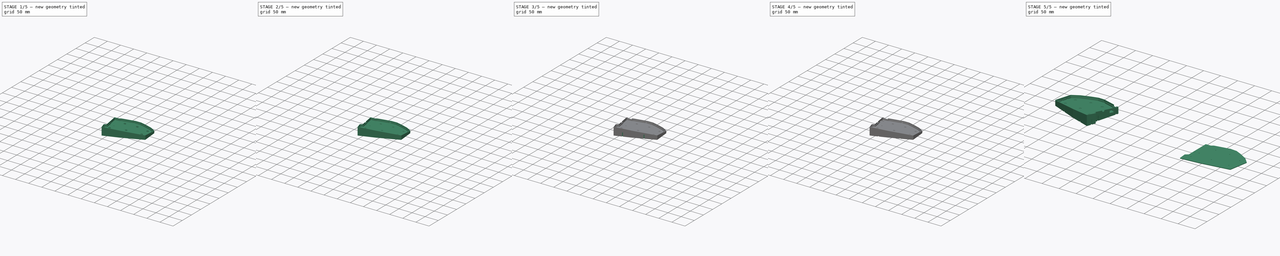
[diagram: build sequence overview — one tinted view per stage of 5, left to right]
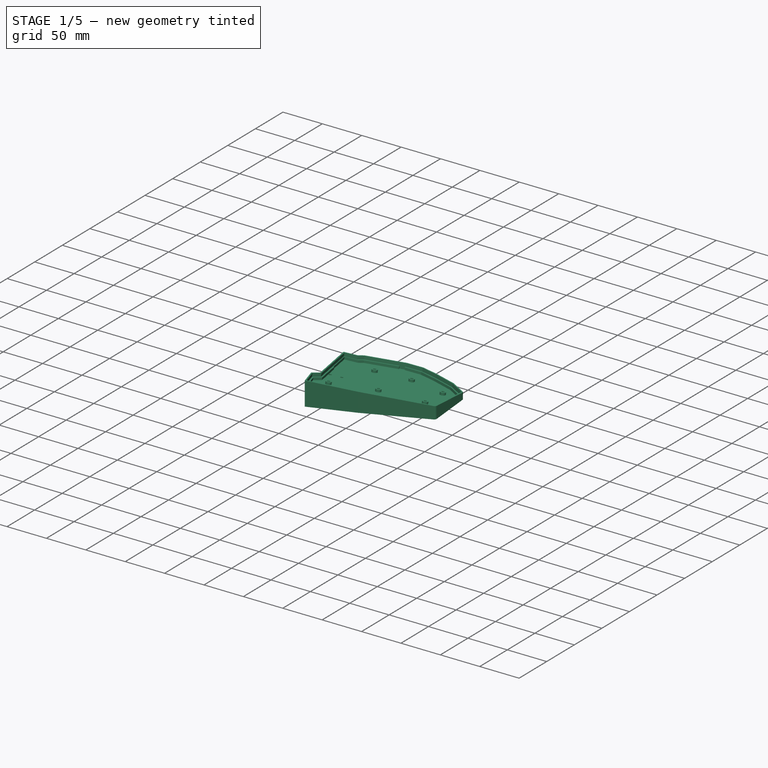
[diagram: stage 1 of 5 — iso view after this stage's code; geometry added in this stage tinted green]
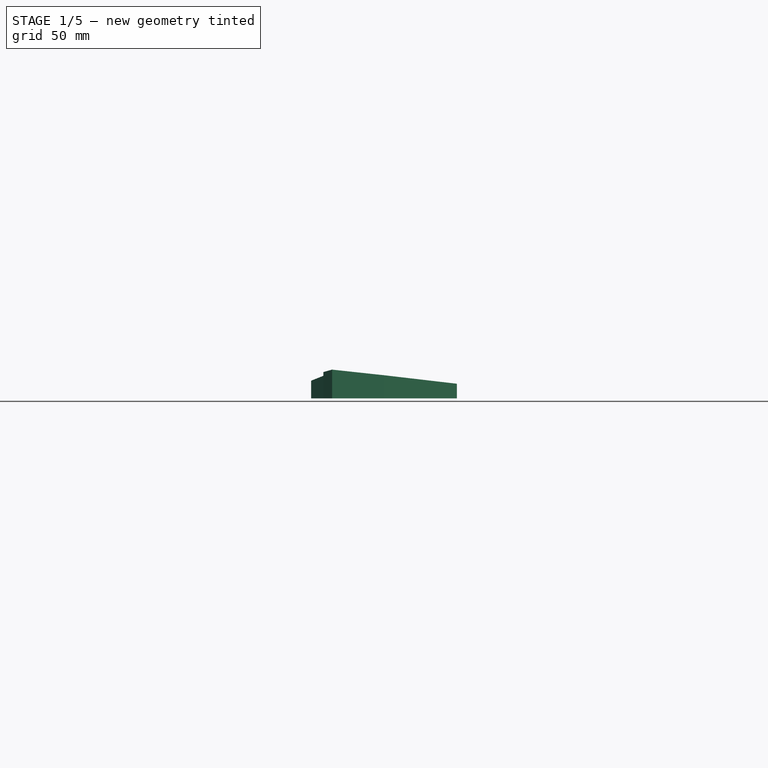
[diagram: stage 1 of 5 — front view after this stage's code; geometry added in this stage tinted green]
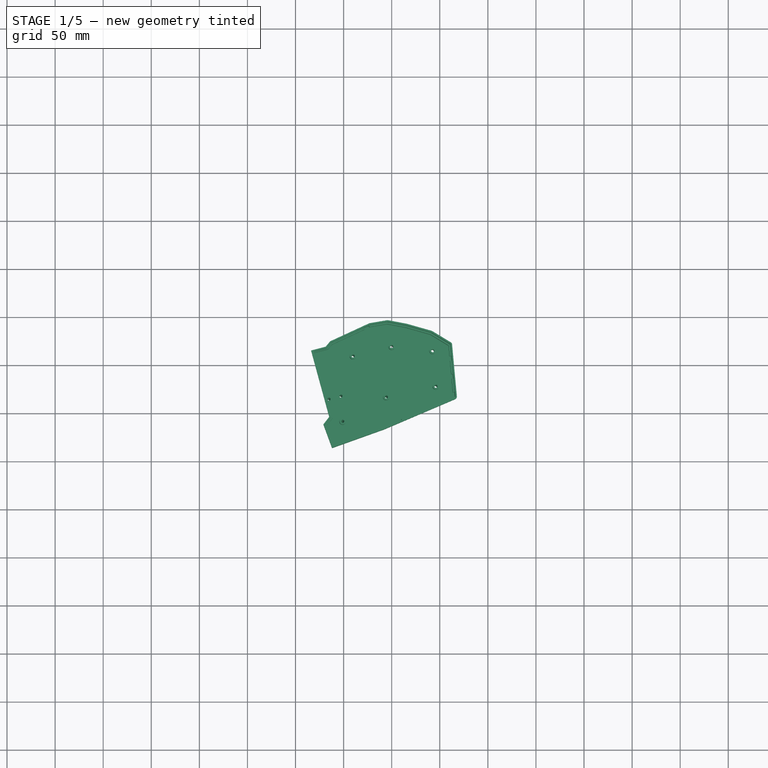
[diagram: stage 1 of 5 — top view after this stage's code; geometry added in this stage tinted green]
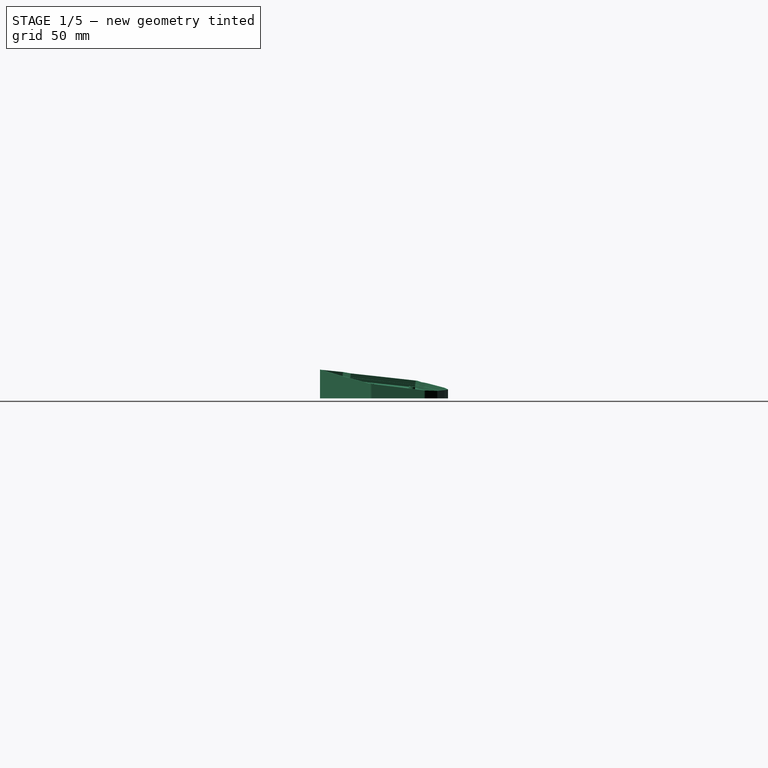
[diagram: stage 1 of 5 — right view after this stage's code; geometry added in this stage tinted green]
FCSTD DOCUMENT  (FreeCAD 1.0R39285 (Git))
Label: cinque-1.0-case-wired
License: All rights reserved
LicenseURL: https://en.wikipedia.org/wiki/All_rights_reserved
objects: Part::Feature×68, Sketcher::SketchObject×18, PartDesign::Pocket×11, PartDesign::Chamfer×3, PartDesign::Pad×2, PartDesign::Body×2, App::FeaturePython×1, App::DocumentObjectGroupPython×1, PartDesign::Plane×1, PartDesign::AdditiveLoft×1, PartDesign::Fillet×1, Part::Mirroring×1
note: 162 computed .brp shape members not serialized (recipe doc carries the construction recipe); baked Part::Feature solids carry a one-line shape summary decoded from their .brp

FEATURE [PartDesign::Body] Body  label="Board"
  AllowCompound = false
  Group = -> [Sketch001,Pad]
  Origin = -> Origin
  Tip = -> Pad
FEATURE [PartDesign::Plane] DatumPlane
  AttachmentOffset = pos=(90,-10,17) rot=(-1.8,1.2,4;0.296706rad)
  AttachmentSupport = -> [XY_Plane001]
  Length = 180
  MapMode = 5
  Placement = pos=(90,-10,17) rot=(-0.39582,0.26388,0.879599;0.296706rad)
  ResizeMode = 1
  Width = 180
FEATURE [Sketcher::SketchObject] Sketch003  label="RightBoard"
  ArcFitTolerance = 1e-06
  AttachmentSupport = -> [DatumPlane]
  FullyConstrained = true
  MakeInternals = false
  MapMode = 5
  Placement = pos=(90,-10,17) rot=(-0.39582,0.26388,0.879599;0.296706rad)
  sketch-geometry (34):
    g0: LineSegment StartX=-67.8115 StartY=-58.5872 StartZ=0 EndX=-12.95 EndY=-53.8 EndZ=0
    g1: ArcOfCircle CenterX=-67.9045 CenterY=-57.6014 CenterZ=0 NormalX=0 NormalY=0 NormalZ=1 AngleXU=0 Radius=0.990117 StartAngle=3.23844 EndAngle=4.80644
    g2: LineSegment StartX=-70.79 StartY=-35.95 StartZ=0 EndX=-68.89 EndY=-57.6972 EndZ=0
    g3: ArcOfCircle CenterX=-69.792 CenterY=-35.8659 CenterZ=0 NormalX=0 NormalY=0 NormalZ=1 AngleXU=0 Radius=1.00155 StartAngle=2.22316 EndAngle=3.22568
    g4: LineSegment StartX=-63.3407 StartY=-29.65 StartZ=0 EndX=-70.4 EndY=-35.07 EndZ=0
    g5: ArcOfCircle CenterX=-63.9331 CenterY=-28.8654 CenterZ=0 NormalX=0 NormalY=0 NormalZ=1 AngleXU=0 Radius=0.983085 StartAngle=5.35909 EndAngle=6.27853
    g6: LineSegment StartX=-62.95 StartY=40.7375 StartZ=0 EndX=-62.95 EndY=-28.87 EndZ=0
    g7: ArcOfCircle CenterX=-61.9484 CenterY=40.7412 CenterZ=0 NormalX=0 NormalY=0 NormalZ=1 AngleXU=0 Radius=1.00165 StartAngle=1.57244 EndAngle=3.14533
    g8: LineSegment StartX=-48.77 StartY=41.7475 StartZ=0 EndX=-61.95 EndY=41.7429 EndZ=0
    g9: ArcOfCircle CenterX=-48.7746 CenterY=42.7497 CenterZ=0 NormalX=0 NormalY=0 NormalZ=1 AngleXU=0 Radius=1.00222 StartAngle=4.71694 EndAngle=5.33514
    g10: LineSegment StartX=-42.48 StartY=45.9675 StartZ=0 EndX=-48.19 EndY=41.9356 EndZ=0
    g11: ArcOfCircle CenterX=-41.8908 CenterY=45.1545 CenterZ=0 NormalX=0 NormalY=0 NormalZ=1 AngleXU=0 Radius=1.00408 StartAngle=1.7604 EndAngle=2.19796
    g12: LineSegment StartX=1.43165 StartY=53.9675 StartZ=0 EndX=-42.08 EndY=46.1406 EndZ=0
    g13: ArcOfCircle CenterX=1.68391 CenterY=52.9862 CenterZ=0 NormalX=0 NormalY=0 NormalZ=1 AngleXU=0 Radius=1.0132 StartAngle=1.55329 EndAngle=1.82242
    g14: LineSegment StartX=20.02 StartY=52.3775 StartZ=0 EndX=1.70165 EndY=53.9992 EndZ=0
    g15: ArcOfCircle CenterX=19.9221 CenterY=51.3898 CenterZ=0 NormalX=0 NormalY=0 NormalZ=1 AngleXU=0 Radius=0.992505 StartAngle=1.11387 EndAngle=1.47201
    g16: LineSegment StartX=38.17 StartY=43.7675 StartZ=0 EndX=20.36 EndY=52.2805 EndZ=0
    g17: ArcOfCircle CenterX=37.7265 CenterY=42.8462 CenterZ=0 NormalX=0 NormalY=0 NormalZ=1 AngleXU=0 Radius=1.02241 StartAngle=1.03246 EndAngle=1.12217
    g18: LineSegment StartX=61.16 StartY=30.1475 StartZ=0 EndX=38.2508 EndY=43.724 EndZ=0
    g19: ArcOfCircle CenterX=60.6282 CenterY=29.2866 CenterZ=0 NormalX=0 NormalY=0 NormalZ=1 AngleXU=0 Radius=1.0119 StartAngle=0.747959 EndAngle=1.01744
    g20: LineSegment StartX=76.9616 StartY=13.6975 StartZ=0 EndX=61.37 EndY=29.9748 EndZ=0
    g21: ArcOfCircle CenterX=76.2654 CenterY=13.0213 CenterZ=0 NormalX=0 NormalY=0 NormalZ=1 AngleXU=0 Radius=0.970546 StartAngle=6.11356 EndAngle=7.05395
    g22: LineSegment StartX=67.7 StartY=-41.18 StartZ=0 EndX=77.222 EndY=12.8575 EndZ=0
    g23: ArcOfCircle CenterX=66.7123 CenterY=-40.9945 CenterZ=0 NormalX=0 NormalY=0 NormalZ=1 AngleXU=0 Radius=1.00495 StartAngle=4.84983 EndAngle=6.09756
    g24: LineSegment StartX=-12.8912 StartY=-53.7932 StartZ=0 EndX=66.85 EndY=-41.99 EndZ=0
    g25: ArcOfCircle CenterX=-13.0339 CenterY=-52.8115 CenterZ=0 NormalX=0 NormalY=0 NormalZ=1 AngleXU=0 Radius=0.992067 StartAngle=4.79708 EndAngle=4.85677
    g26: Circle CenterX=-52 CenterY=-36.12 CenterZ=0 NormalX=0 NormalY=0 NormalZ=-1 AngleXU=0 Radius=1.1
    g27: Circle CenterX=-59.45 CenterY=-9.66 CenterZ=0 NormalX=0 NormalY=0 NormalZ=-1 AngleXU=0 Radius=1.1
    g28: Circle CenterX=-46.65 CenterY=-9.66 CenterZ=0 NormalX=0 NormalY=0 NormalZ=-1 AngleXU=0 Radius=1.1
    g29: Circle CenterX=-23.6 CenterY=27.39 CenterZ=0 NormalX=0 NormalY=0 NormalZ=-1 AngleXU=0 Radius=1.1
    g30: Circle CenterX=17.96 CenterY=26.75 CenterZ=0 NormalX=0 NormalY=0 NormalZ=-1 AngleXU=0 Radius=1.1
    g31: Circle CenterX=-1.35 CenterY=-22.86 CenterZ=0 NormalX=0 NormalY=0 NormalZ=-1 AngleXU=0 Radius=1.1
    g32: Circle CenterX=51.54 CenterY=-25.17 CenterZ=0 NormalX=0 NormalY=0 NormalZ=-1 AngleXU=0 Radius=1.1
    g33: Circle CenterX=58.03 CenterY=11.66 CenterZ=0 NormalX=0 NormalY=0 NormalZ=-1 AngleXU=0 Radius=1.1
  constraints (115):
    c: DistanceY(g6,g6) = 69.6075
    c: Vertical(g6)
    c: DistanceX(g8,g8) = 13.18
    c: Distance(g10,g10) = 6.99
    c: Distance(g12,g12) = 44.21
    c: Distance(g14,g14) = 18.39
    c: Distance(g16,g16) = 19.74
    c: Distance(g18,g18) = 26.63
    c: Distance(g20,g20) = 22.54
    c: Distance(g22,g22) = 54.87
    c: Distance(g24,g24) = 80.61
    c: Distance(g0,g0) = 55.07
    c: Distance(g2,g2) = 21.83
    c: Distance(g4,g4) = 8.9
    c: Coincident(g2,g3)
    c: Coincident(g3,g4)
    c: Coincident(g4,g5)
    c: Coincident(g5,g6)
    c: Coincident(g6,g7)
    c: Coincident(g7,g8)
    c: Coincident(g8,g9)
    c: Coincident(g9,g10)
    c: Coincident(g10,g11)
    c: Coincident(g11,g12)
    c: Coincident(g12,g13)
    c: Coincident(g13,g14)
    c: Coincident(g14,g15)
    c: Coincident(g15,g16)
    c: Coincident(g16,g17)
    c: Coincident(g17,g18)
    c: Coincident(g18,g19)
    c: Coincident(g19,g20)
    c: Coincident(g20,g21)
    c: Coincident(g21,g22)
    c: Coincident(g23,g24)
    c: Coincident(g22,g23)
    c: Coincident(g0,g25)
    c: Coincident(g24,g25)
    c: Coincident(g0,g1)
    c: Coincident(g1,g2)
    c: Angle(g3) = 1.00252
    c: Angle(g5) = 0.919439
    c: Angle(g7) = 1.57289
    c: Angle(g9) = 0.618196
    c: Angle(g11) = 0.437554
    c: Angle(g13) = 0.26913
    c: Angle(g15) = 0.358142
    c: Angle(g17) = 0.0897099
    c: Angle(g19) = 0.269479
    c: Angle(g21) = 0.940383
    c: Angle(g23) = 1.24774
    c: Angle(g25) = 0.0596903
    c: Angle(g1) = 1.568
    c: Diameter(g27) = 2.2
    c: Diameter(g26) = 2.2
    c: Diameter(g28) = 2.2
    c: Diameter(g29) = 2.2
    c: Diameter(g30) = 2.2
    c: Diameter(g33) = 2.2
    c: Diameter(g32) = 2.2
    c: Diameter(g31) = 2.2
    c: DistanceX(g5,g27) = 3.5
    c: DistanceY(g5,g27) = 19.21
    c: DistanceX(g27,g28) = 12.8
    c: Horizontal(g27,g28)
    c: DistanceX(g27,g26) = 7.45
    c: DistanceY(g26,g27) = 26.46
    c: DistanceX(g27,g31) = 58.1
    c: DistanceY(g31,g27) = 13.2
    c: DistanceX(g27,g32) = 110.99
    c: DistanceY(g32,g27) = 15.51
    c: DistanceY(g27,g29) = 37.05
    c: DistanceX(g27,g29) = 35.85
    c: DistanceX(g27,g30) = 77.41
    c: DistanceY(g27,g30) = 36.41
    c: DistanceX(g27,g33) = 117.48
    c: DistanceY(g27,g33) = 21.32
    c: DistanceX(g6,g8) = 14.18
    c: DistanceX(g6,g10) = 20.47
    c: DistanceX(g7,g12) = 63.38
    c: DistanceX(g6,g14) = 82.97
    c: DistanceX(g6,g18) = 124.11
    c: DistanceX(g7,g20) = 138.91
    c: DistanceY(g6,g8) = 1.01
    c: DistanceY(g6,g10) = 5.23
    c: DistanceY(g6,g12) = 13.23
    c: DistanceY(g6,g14) = 11.64
    c: DistanceY(g6,g16) = 3.03
    c: DistanceX(g6,g16) = 101.12
    c: DistanceY(g18,g6) = 10.59
    c: DistanceX(g3,g5) = 7.45
    c: DistanceX(g2,g5) = 7.84
    c: DistanceY(g2,g5) = 7.08
    c: DistanceX(g1,g5) = 5.94
    c: DistanceX(g5,g0) = 50
    c: DistanceY(g0,g5) = 24.93
    c: DistanceX(g5,g23) = 129.8
    c: DistanceY(g23,g5) = 13.12
    c: Angle(g6,g8) = 1.57115
    c: DistanceY(g3,g5) = 6.2
    c: DistanceX(g0,g24) = 0.05882
    c: DistanceX(g14,g15) = 0.34
    c: DistanceX(g12,g13) = 0.27
    c: DistanceX(g10,g11) = 0.4
    c: DistanceX(g8,g9) = 0.58
    c: DistanceY(g0,g1) = 0.89
    c: DistanceX(g23,g22) = 0.85
    c: DistanceY(g21,g20) = 0.84
    c: DistanceX(g18,g19) = 0.21
    c: DistanceX(g16,g17) = 0.08075
    c: DistanceY(g4,g5) = 0.78
    c: DistanceY(g20,g6) = 27.04
    c: DistanceY(g23,g22) = 0.81
    c: DistanceX(g5,g-1) = 62.95
    c: DistanceY(g5,g-1) = 28.87
FEATURE [Sketcher::SketchObject] Sketch005  label="RightBoardCutout"
  ArcFitTolerance = 1e-06
  AttachmentSupport = -> [DatumPlane]
  ExternalGeometry = -> [Sketch003]
  FullyConstrained = true
  MakeInternals = false
  MapMode = 5
  Placement = pos=(90,-10,17) rot=(-0.39582,0.26388,0.879599;0.296706rad)
  sketch-geometry (19):
    g0: LineSegment StartX=-63.15 StartY=-28.87 StartZ=0 EndX=-63.15 EndY=40.7375 EndZ=0
    g1: LineSegment StartX=-61.95 StartY=41.9429 StartZ=0 EndX=-48.5264 EndY=41.9429 EndZ=0
    g2: LineSegment StartX=-48.5264 StartY=41.9429 StartZ=0 EndX=-42.3669 EndY=46.2922 EndZ=0
    g3: LineSegment StartX=-42.3669 StartY=46.2922 StartZ=0 EndX=1.62995 EndY=54.2064 EndZ=0
    g4: LineSegment StartX=1.62995 StartY=54.2064 StartZ=0 EndX=20.2419 EndY=52.5586 EndZ=0
    g5: LineSegment StartX=20.2419 StartY=52.5586 StartZ=0 EndX=38.3029 EndY=43.9256 EndZ=0
    g6: LineSegment StartX=38.3029 StartY=43.9256 StartZ=0 EndX=61.3887 EndY=30.2444 EndZ=0
    g7: LineSegment StartX=61.3887 StartY=30.2444 StartZ=0 EndX=77.1395 EndY=13.801 EndZ=0
    g8: LineSegment StartX=77.4127 StartY=12.7873 StartZ=0 EndX=67.8907 EndY=-41.2501 EndZ=0
    g9: LineSegment StartX=66.8761 StartY=-42.1883 StartZ=0 EndX=-12.8947 EndY=-53.9959 EndZ=0
    g10: LineSegment StartX=-12.8947 StartY=-53.9959 StartZ=0 EndX=-67.8087 EndY=-58.7877 EndZ=0
    g11: LineSegment StartX=-69.0892 StartY=-57.7155 StartZ=0 EndX=-70.9892 EndY=-35.9683 EndZ=0
    g12: LineSegment StartX=-70.5258 StartY=-34.9145 StartZ=0 EndX=-63.4618 EndY=-29.4908 EndZ=0
    g13: ArcOfCircle CenterX=-63.94 CenterY=-28.862 CenterZ=0 NormalX=0 NormalY=0 NormalZ=1 AngleXU=0 Radius=0.79 StartAngle=5.36244 EndAngle=6.27301
    g14: ArcOfCircle CenterX=-69.878 CenterY=-35.8281 CenterZ=0 NormalX=0 NormalY=0 NormalZ=1 AngleXU=0 Radius=1.12 StartAngle=2.1876 EndAngle=3.26715
    g15: ArcOfCircle CenterX=-67.9128 CenterY=-57.6113 CenterZ=0 NormalX=0 NormalY=0 NormalZ=1 AngleXU=0 Radius=1.18094 StartAngle=3.22991 EndAngle=4.80071
    g16: ArcOfCircle CenterX=66.7124 CenterY=-40.9935 CenterZ=0 NormalX=0 NormalY=0 NormalZ=1 AngleXU=0 Radius=1.20595 StartAngle=4.84859 EndAngle=6.06875
    g17: ArcOfCircle CenterX=76.2603 CenterY=13.0203 CenterZ=0 NormalX=0 NormalY=0 NormalZ=1 AngleXU=0 Radius=1.17577 StartAngle=6.08373 EndAngle=7.00931
    g18: ArcOfCircle CenterX=-61.9473 CenterY=40.7402 CenterZ=0 NormalX=0 NormalY=0 NormalZ=1 AngleXU=0 Radius=1.2027 StartAngle=1.57304 EndAngle=3.14384
  constraints (63):
    c: Vertical(g0)
    c: Distance(g-3,g0) = 0.2
    c: Horizontal(g-3,g0)
    c: Horizontal(g1)
    c: Vertical(g1,g-4)
    c: DistanceY(g-4,g1) = 0.2
    c: Parallel(g2,g-5)
    c: Parallel(g3,g-6)
    c: Parallel(g-7,g4)
    c: Distance(g-7,g4) = 0.2
    c: Parallel(g-8,g5)
    c: Distance(g5,g-8) = 0.2
    c: Parallel(g-9,g6)
    c: Distance(g6,g-9) = 0.2
    c: Parallel(g-10,g7)
    c: Distance(g7,g-10) = 0.2
    c: Coincident(g6,g7)
    c: Parallel(g8,g-11)
    c: Distance(g8,g-11) = 0.2
    c: Parallel(g9,g-12)
    c: Distance(g9,g-12) = 0.2
    c: Parallel(g-13,g10)
    c: Distance(g10,g-13) = 0.2
    c: Coincident(g10,g9)
    c: Parallel(g11,g-14)
    c: Distance(g-14,g11) = 0.2
    c: Parallel(g12,g-15)
    c: Distance(g-15,g12) = 0.2
    c: Coincident(g13,g0)
    c: Coincident(g13,g12)
    c: Horizontal(g0,g-3)
    c: Coincident(g14,g11)
    c: Coincident(g14,g12)
    c: Coincident(g15,g11)
    c: Coincident(g15,g10)
    c: Angle(g15) = 1.5708
    c: Coincident(g16,g9)
    c: Coincident(g16,g8)
    c: Angle(g16) = 1.22016
    c: Coincident(g17,g7)
    c: Coincident(g17,g8)
    c: Coincident(g6,g5)
    c: Coincident(g5,g4)
    c: Distance(g-6,g3) = 0.2
    c: Coincident(g4,g3)
    c: Distance(g-5,g2) = 0.2
    c: Coincident(g3,g2)
    c: Coincident(g2,g1)
    c: Coincident(g18,g0)
    c: Coincident(g18,g1)
    c: Angle(g18) = 1.5708
    c: Distance(g10,g-17) = 0.2
    c: Distance(g11,g-17) = 0.2
    c: Distance(g12,g-16) = 0.2
    c: Radius(g14) = 1.12
    c: Distance(g12,g-18) = 0.2
    c: Radius(g13) = 0.79
    c: Distance(g17,g-19) = 0.2
    c: Distance(g-20,g16) = 0.2
    c: Equal(g11,g-14)
    c: Distance(g9,g9) = 80.64
    c: Equal(g-11,g8)
    c: Distance(g7,g7) = 22.77
FEATURE [Sketcher::SketchObject] Sketch006  label="CaseOutline"
  ArcFitTolerance = 1e-06
  AttachmentSupport = -> [DatumPlane]
  ExternalGeometry = -> [Sketch005]
  FullyConstrained = true
  MakeInternals = false
  MapMode = 5
  Placement = pos=(90,-10,17) rot=(-0.39582,0.26388,0.879599;0.296706rad)
  sketch-geometry (15):
    g0: LineSegment StartX=-64.75 StartY=43.5429 StartZ=0 EndX=-49.0344 EndY=43.5429 EndZ=0
    g1: LineSegment StartX=-49.0344 StartY=43.5429 StartZ=0 EndX=-42.9997 EndY=47.804 EndZ=0
    g2: LineSegment StartX=-42.9997 StartY=47.804 StartZ=0 EndX=1.55759 EndY=55.819 EndZ=0
    g3: LineSegment StartX=1.55759 StartY=55.819 StartZ=0 EndX=20.671 EndY=54.1269 EndZ=0
    g4: LineSegment StartX=20.671 StartY=54.1269 StartZ=0 EndX=39.0572 EndY=45.3384 EndZ=0
    g5: LineSegment StartX=39.0572 StartY=45.3384 StartZ=0 EndX=62.3927 EndY=31.5093 EndZ=0
    g6: LineSegment StartX=62.3927 StartY=31.5093 StartZ=0 EndX=78.2395 EndY=14.9656 EndZ=0
    g7: LineSegment StartX=78.9827 StartY=12.4772 StartZ=0 EndX=69.4907 EndY=-41.39 EndZ=0
    g8: LineSegment StartX=67.129 StartY=-43.7683 StartZ=0 EndX=-12.7079 EndY=-55.5857 EndZ=0
    g9: LineSegment StartX=-12.7079 StartY=-55.5857 StartZ=0 EndX=-70.4412 EndY=-60.6235 EndZ=0
    g10: ArcOfCircle CenterX=76.2828 CenterY=13.026 CenterZ=0 NormalX=0 NormalY=0 NormalZ=1 AngleXU=0 Radius=2.75511 StartAngle=6.08265 EndAngle=7.06423
    g11: ArcOfCircle CenterX=66.5265 CenterY=-40.8082 CenterZ=0 NormalX=0 NormalY=0 NormalZ=1 AngleXU=0 Radius=3.02078 StartAngle=4.9132 EndAngle=6.08937
    g12: LineSegment StartX=-64.75 StartY=43.5429 StartZ=0 EndX=-64.75 EndY=-28.4627 EndZ=0
    g13: LineSegment StartX=-64.75 StartY=-28.4627 StartZ=0 EndX=-72.7166 EndY=-34.5793 EndZ=0
    g14: LineSegment StartX=-72.7166 StartY=-34.5793 StartZ=0 EndX=-70.4412 EndY=-60.6235 EndZ=0
  constraints (47):
    c: Horizontal(g0)
    c: Distance(g0,g-3) = 1.6
    c: Coincident(g0,g1)
    c: Parallel(g1,g-4)
    c: Parallel(g2,g-5)
    c: Parallel(g-7,g3)
    c: Parallel(g-8,g4)
    c: Parallel(g-9,g5)
    c: Parallel(g-10,g6)
    c: Parallel(g-11,g7)
    c: Parallel(g-12,g8)
    c: Parallel(g-13,g9)
    c: Distance(g-13,g9) = 1.6
    c: Distance(g-12,g8) = 1.6
    c: Distance(g7,g-11) = 1.6
    c: Distance(g6,g-10) = 1.6
    c: Distance(g5,g-9) = 1.6
    c: Distance(g4,g-8) = 1.6
    c: Distance(g-7,g3) = 1.6
    c: Distance(g2,g-5) = 1.6
    c: Distance(g-4,g1) = 1.6
    c: Coincident(g2,g1)
    c: Coincident(g2,g3)
    c: Coincident(g4,g3)
    c: Coincident(g4,g5)
    c: Coincident(g5,g6)
    c: Coincident(g10,g6)
    c: Coincident(g10,g7)
    c: Angle(g10) = 0.981573
    c: DistanceX(g-10,g6) = 1.1
    c: DistanceX(g-11,g7) = 1.57
    c: Coincident(g11,g8)
    c: Coincident(g11,g7)
    c: Angle(g11) = 1.17618
    c: DistanceX(g-11,g7) = 1.6
    c: DistanceY(g8,g-12) = 1.58
    c: Coincident(g9,g8)
    c: Vertical(g12)
    c: Distance(g12,g-6) = 1.6
    c: Coincident(g0,g12)
    c: Parallel(g13,g-15)
    c: Distance(g-15,g13) = 1.6
    c: Coincident(g13,g12)
    c: Parallel(g14,g-14)
    c: Distance(g-14,g14) = 1.6
    c: Coincident(g14,g13)
    c: Coincident(g14,g9)
FEATURE [Sketcher::SketchObject] Sketch007  label="CastBase"
  ArcFitTolerance = 1e-06
  AttachmentSupport = -> [XY_Plane001]
  ExternalGeometry = -> [Sketch006]
  FullyConstrained = true
  MakeInternals = false
  MapMode = 5
  sketch-geometry (15):
    g0: LineSegment StartX=38.0217 StartY=-85.9528 StartZ=0 EndX=92.3091 EndY=-66.5361 EndZ=0
    g1: LineSegment StartX=92.3091 StartY=-66.5361 StartZ=0 EndX=166.111 EndY=-35.0318 EndZ=0
    g2: LineSegment StartX=167.763 StartY=-32.1537 StartZ=0 EndX=162.807 EndY=21.9215 EndZ=0
    g3: LineSegment StartX=161.439 StartY=24.121 StartZ=0 EndX=141.847 EndY=35.9891 EndZ=0
    g4: LineSegment StartX=141.847 StartY=35.9891 StartZ=0 EndX=115.751 EndY=43.3614 EndZ=0
    g5: LineSegment StartX=115.751 StartY=43.3614 StartZ=0 EndX=95.7425 EndY=47.1481 EndZ=0
    g6: LineSegment StartX=95.7425 StartY=47.1481 StartZ=0 EndX=76.8905 EndY=43.9433 EndZ=0
    g7: LineSegment StartX=76.8905 StartY=43.9433 StartZ=0 EndX=36.0729 EndY=24.9987 EndZ=0
    g8: LineSegment StartX=36.0729 StartY=24.9987 StartZ=0 EndX=31.3759 EndY=19.3864 EndZ=0
    g9: LineSegment StartX=31.3759 StartY=19.3864 StartZ=0 EndX=16.2394 EndY=15.4165 EndZ=0
    g10: LineSegment StartX=16.2394 StartY=15.4165 StartZ=0 EndX=35.0856 EndY=-53.6618 EndZ=0
    g11: LineSegment StartX=35.0856 StartY=-53.6618 StartZ=0 EndX=29.0135 EndY=-61.5422 EndZ=0
    g12: LineSegment StartX=29.0135 StartY=-61.5422 StartZ=0 EndX=38.0217 EndY=-85.9528 EndZ=0
    g13: ArcOfCircle CenterX=164.363 CenterY=-32.1153 CenterZ=0 NormalX=0 NormalY=0 NormalZ=1 AngleXU=0 Radius=3.4 StartAngle=5.25223 EndAngle=6.27191
    g14: ArcOfCircle CenterX=159.666 CenterY=21.4937 CenterZ=0 NormalX=0 NormalY=0 NormalZ=1 AngleXU=0 Radius=3.17 StartAngle=0.135343 EndAngle=0.976936
  constraints (32):
    c: Coincident(g0,g-14)
    c: Coincident(g0,g-14)
    c: Coincident(g4,g3)
    c: Coincident(g4,g-8)
    c: Coincident(g5,g4)
    c: Coincident(g5,g-7)
    c: Coincident(g6,g5)
    c: Coincident(g6,g-6)
    c: Coincident(g7,g6)
    c: Coincident(g7,g-5)
    c: Coincident(g8,g7)
    c: Coincident(g8,g-4)
    c: Coincident(g9,g8)
    c: Coincident(g9,g-3)
    c: Coincident(g1,g-13)
    c: Coincident(g0,g1)
    c: Coincident(g2,g-11)
    c: Coincident(g-9,g3)
    c: Coincident(g-9,g3)
    c: Coincident(g2,g-11)
    c: Coincident(g10,g9)
    c: Coincident(g10,g-17)
    c: Coincident(g11,g10)
    c: Coincident(g11,g-16)
    c: Coincident(g12,g11)
    c: Coincident(g12,g0)
    c: Coincident(g13,g1)
    c: Coincident(g13,g2)
    c: Radius(g13) = 3.4
    c: Coincident(g14,g3)
    c: Coincident(g14,g2)
    c: Radius(g14) = 3.17
FEATURE [Sketcher::SketchObject] Sketch008  label="BoardSpaceCutout"
  ArcFitTolerance = 1e-06
  AttachmentSupport = -> [DatumPlane]
  ExternalGeometry = -> [Sketch005,Sketch003]
  FullyConstrained = true
  MakeInternals = false
  MapMode = 5
  Placement = pos=(90,-10,17) rot=(-0.39582,0.26388,0.879599;0.296706rad)
  sketch-geometry (39):
    g0: LineSegment StartX=-62.15 StartY=40.9429 StartZ=0 EndX=-46.822 EndY=40.9429 EndZ=0
    g1: LineSegment StartX=-46.822 StartY=40.9429 StartZ=0 EndX=-41.655 EndY=44.5913 EndZ=0
    g2: LineSegment StartX=-41.655 StartY=44.5913 StartZ=0 EndX=-4.93202 EndY=51.1971 EndZ=0
    g3: LineSegment StartX=1.71135 StartY=52.3921 StartZ=0 EndX=19.7591 EndY=50.7943 EndZ=0
    g4: LineSegment StartX=19.7591 StartY=50.7943 StartZ=0 EndX=37.4542 EndY=42.3362 EndZ=0
    g5: LineSegment StartX=37.4542 StartY=42.3362 StartZ=0 EndX=60.2592 EndY=28.8215 EndZ=0
    g6: LineSegment StartX=60.2592 StartY=28.8215 StartZ=0 EndX=75.5901 EndY=12.8163 EndZ=0
    g7: LineSegment StartX=-13.1588 StartY=-52.2121 StartZ=0 EndX=-67.35 EndY=-56.9408 EndZ=0
    g8: LineSegment StartX=-67.35 StartY=-56.9408 StartZ=0 EndX=-69.1672 EndY=-36.1407 EndZ=0
    g9: LineSegment StartX=-69.1672 StartY=-36.1407 StartZ=0 EndX=-61.35 EndY=-30.1388 EndZ=0
    g10: LineSegment StartX=-61.35 StartY=-30.1388 StartZ=0 EndX=-61.35 EndY=6.94287 EndZ=0
    g11: LineSegment StartX=66.2007 StartY=-40.4687 StartZ=0 EndX=67.9734 EndY=-40.781 EndZ=0
    g12: LineSegment StartX=68.8411 StartY=-35.8569 StartZ=0 EndX=67.0684 EndY=-35.5445 EndZ=0
    g13: LineSegment StartX=67.0684 StartY=-35.5445 StartZ=0 EndX=69.4979 EndY=-21.757 EndZ=0
    g14: LineSegment StartX=69.4979 StartY=-21.757 StartZ=0 EndX=71.2706 EndY=-22.0693 EndZ=0
    g15: LineSegment StartX=71.2706 StartY=-22.0693 StartZ=0 EndX=72.1383 EndY=-17.1452 EndZ=0
    g16: LineSegment StartX=72.1383 StartY=-17.1452 StartZ=0 EndX=70.3656 EndY=-16.8328 EndZ=0
    g17: LineSegment StartX=70.3656 StartY=-16.8328 StartZ=0 EndX=72.7951 EndY=-3.04524 EndZ=0
    g18: LineSegment StartX=72.7951 StartY=-3.04524 StartZ=0 EndX=74.5678 EndY=-3.35761 EndZ=0
    g19: LineSegment StartX=74.5678 StartY=-3.35761 StartZ=0 EndX=75.4355 EndY=1.56653 EndZ=0
    g20: LineSegment StartX=75.4355 StartY=1.56653 StartZ=0 EndX=73.6628 EndY=1.87889 EndZ=0
    g21: LineSegment StartX=73.6628 StartY=1.87889 StartZ=0 EndX=75.5901 EndY=12.8163 EndZ=0
    g22: LineSegment StartX=68.8411 StartY=-35.8569 StartZ=0 EndX=67.9734 EndY=-40.781 EndZ=0
    g23: LineSegment StartX=-13.1588 StartY=-52.2121 StartZ=0 EndX=-12.8947 EndY=-53.9959 EndZ=0
    g24: LineSegment StartX=-12.8947 StartY=-53.9959 StartZ=0 EndX=7.87894 EndY=-50.921 EndZ=0
    g25: LineSegment StartX=7.87894 StartY=-50.921 StartZ=0 EndX=7.61538 EndY=-49.1404 EndZ=0
    g26: LineSegment StartX=7.61538 StartY=-49.1404 StartZ=0 EndX=66.2007 EndY=-40.4687 EndZ=0
    g27: Circle CenterX=-23.6 CenterY=27.39 CenterZ=0 NormalX=0 NormalY=0 NormalZ=1 AngleXU=0 Radius=3.3
    g28: Circle CenterX=17.96 CenterY=26.75 CenterZ=0 NormalX=0 NormalY=0 NormalZ=1 AngleXU=0 Radius=3.3
    g29: Circle CenterX=58.03 CenterY=11.66 CenterZ=0 NormalX=0 NormalY=0 NormalZ=1 AngleXU=0 Radius=3.3
    g30: Circle CenterX=51.54 CenterY=-25.17 CenterZ=0 NormalX=0 NormalY=0 NormalZ=1 AngleXU=0 Radius=3.3
    g31: Circle CenterX=-1.35 CenterY=-22.86 CenterZ=0 NormalX=0 NormalY=0 NormalZ=1 AngleXU=0 Radius=3.3
    g32: Circle CenterX=-52 CenterY=-36.12 CenterZ=0 NormalX=0 NormalY=0 NormalZ=1 AngleXU=0 Radius=3.3
    g33: LineSegment StartX=-4.93202 StartY=51.1971 StartZ=0 EndX=-5.25069 EndY=52.9687 EndZ=0
    g34: LineSegment StartX=-5.25069 StartY=52.9687 StartZ=0 EndX=0.654529 EndY=54.0309 EndZ=0
    g35: LineSegment StartX=0.654529 StartY=54.0309 StartZ=0 EndX=0.9732 EndY=52.2593 EndZ=0
    g36: LineSegment StartX=0.9732 StartY=52.2593 StartZ=0 EndX=1.71135 EndY=52.3921 EndZ=0
    g37: LineSegment StartX=-61.35 StartY=6.94287 StartZ=0 EndX=-62.15 EndY=6.94287 EndZ=0
    g38: LineSegment StartX=-62.15 StartY=6.94287 StartZ=0 EndX=-62.15 EndY=40.9429 EndZ=0
  constraints (110):
    c: Horizontal(g0)
    c: Coincident(g0,g1)
    c: Coincident(g1,g2)
    c: Coincident(g3,g4)
    c: Coincident(g4,g5)
    c: Coincident(g5,g6)
    c: Coincident(g7,g8)
    c: Coincident(g8,g9)
    c: Coincident(g9,g10)
    c: Vertical(g10)
    c: Distance(g10,g-3) = 1.8
    c: Distance(g0,g-4) = 1
    c: Parallel(g-5,g1)
    c: Parallel(g-6,g2)
    c: Parallel(g3,g-7)
    c: Parallel(g4,g-8)
    c: Parallel(g5,g-9)
    c: Parallel(g6,g-10)
    c: Parallel(g7,g-13)
    c: Parallel(g8,g-14)
    c: Parallel(g-15,g9)
    c: Distance(g-13,g7) = 1.8
    c: Distance(g-14,g8) = 1.8
    c: Distance(g9,g-15) = 1.8
    c: Distance(g1,g-5) = 1.8
    c: Distance(g2,g-6) = 1.8
    c: Distance(g3,g-7) = 1.8
    c: Distance(g4,g-8) = 1.8
    c: Distance(g-9,g5) = 1.8
    c: Distance(g-10,g6) = 1.8
    c: PointOnObject(g11,g-11)
    c: PointOnObject(g12,g-11)
    c: Coincident(g13,g12)
    c: Coincident(g14,g13)
    c: PointOnObject(g14,g-11)
    c: Coincident(g15,g14)
    c: PointOnObject(g15,g-11)
    c: Coincident(g16,g15)
    c: Coincident(g17,g16)
    c: Coincident(g18,g17)
    c: PointOnObject(g18,g-11)
    c: Coincident(g19,g18)
    c: PointOnObject(g19,g-11)
    c: Coincident(g21,g20)
    c: Coincident(g21,g6)
    c: Parallel(g21,g-11)
    c: Parallel(g17,g-11)
    c: Parallel(g13,g-11)
    c: Parallel(g20,g18)
    c: Parallel(g18,g16)
    c: Parallel(g16,g14)
    c: Parallel(g14,g12)
    c: Parallel(g12,g11)
    c: Angle(g-11,g11) = 1.5708
    c: Coincident(g22,g12)
    c: Coincident(g22,g11)
    c: Distance(g22,g22) = 5
    c: Distance(g13,g13) = 14
    c: Coincident(g19,g20)
    c: Distance(g15,g15) = 5
    c: Distance(g17,g17) = 14
    c: Distance(g19,g19) = 5
    c: Distance(g20,g20) = 1.8
    c: Distance(g16,g16) = 1.8
    c: Distance(g12,g12) = 1.8
    c: Distance(g11,g11) = 1.8
    c: Coincident(g23,g7)
    c: Coincident(g24,g23)
    c: PointOnObject(g24,g-12)
    c: Coincident(g25,g24)
    c: Coincident(g26,g25)
    c: Coincident(g26,g11)
    c: Parallel(g23,g25)
    c: Parallel(g26,g-12)
    c: Distance(g-12,g26) = 1.8
    c: Distance(g24,g24) = 21
    c: Angle(g24,g23) = 1.5708
    c: Coincident(g-13,g23)
    c: Diameter(g27) = 6.6
    c: Coincident(g27,g-22)
    c: Diameter(g28) = 6.6
    c: Coincident(g28,g-21)
    c: Diameter(g29) = 6.6
    c: Coincident(g29,g-20)
    c: Diameter(g30) = 6.6
    c: Coincident(g30,g-19)
    c: Diameter(g31) = 6.6
    c: Coincident(g31,g-18)
    c: Diameter(g32) = 6.6
    c: Coincident(g32,g-17)
    c: Coincident(g2,g33)
    c: Coincident(g33,g34)
    c: Coincident(g34,g35)
    c: Coincident(g35,g36)
    c: Coincident(g36,g3)
    c: Distance(g34,g34) = 6
    c: Parallel(g34,g-6)
    c: PointOnObject(g34,g-6)
    c: Distance(g36,g36) = 0.75
    c: Parallel(g36,g-6)
    c: Perpendicular(g36,g35)
    c: Perpendicular(g2,g33)
    c: Distance(g35,g35) = 1.8
    c: Coincident(g10,g37)
    c: Coincident(g37,g38)
    c: Vertical(g38)
    c: Distance(g38,g-3) = 1
    c: DistanceY(g37,g-4) = 35
    c: Perpendicular(g38,g37)
    c: Coincident(g38,g0)
FEATURE [Sketcher::SketchObject] Sketch009  label="HoleCutout"
  ArcFitTolerance = 1e-06
  AttachmentSupport = -> [DatumPlane]
  ExternalGeometry = -> [Sketch003]
  FullyConstrained = true
  MakeInternals = false
  MapMode = 5
  Placement = pos=(90,-10,17) rot=(-0.39582,0.26388,0.879599;0.296706rad)
  sketch-geometry (8):
    g0: Circle CenterX=-59.45 CenterY=-9.66 CenterZ=0 NormalX=0 NormalY=0 NormalZ=1 AngleXU=0 Radius=1.6
    g1: Circle CenterX=-46.65 CenterY=-9.66 CenterZ=0 NormalX=0 NormalY=0 NormalZ=1 AngleXU=0 Radius=1.6
    g2: Circle CenterX=-52 CenterY=-36.12 CenterZ=0 NormalX=0 NormalY=0 NormalZ=1 AngleXU=0 Radius=1.6
    g3: Circle CenterX=-1.35 CenterY=-22.86 CenterZ=0 NormalX=0 NormalY=0 NormalZ=1 AngleXU=0 Radius=1.6
    g4: Circle CenterX=51.54 CenterY=-25.17 CenterZ=0 NormalX=0 NormalY=0 NormalZ=1 AngleXU=0 Radius=1.6
    g5: Circle CenterX=58.03 CenterY=11.66 CenterZ=0 NormalX=0 NormalY=0 NormalZ=1 AngleXU=0 Radius=1.6
    g6: Circle CenterX=17.96 CenterY=26.75 CenterZ=0 NormalX=0 NormalY=0 NormalZ=1 AngleXU=0 Radius=1.6
    g7: Circle CenterX=-23.6 CenterY=27.39 CenterZ=0 NormalX=0 NormalY=0 NormalZ=1 AngleXU=0 Radius=1.6
  constraints (16):
    c: Diameter(g0) = 3.2
    c: Coincident(g0,g-3)
    c: Diameter(g1) = 3.2
    c: Coincident(g1,g-4)
    c: Diameter(g2) = 3.2
    c: Coincident(g2,g-5)
    c: Diameter(g3) = 3.2
    c: Coincident(g3,g-6)
    c: Diameter(g4) = 3.2
    c: Coincident(g4,g-7)
    c: Diameter(g5) = 3.2
    c: Coincident(g5,g-8)
    c: Diameter(g6) = 3.2
    c: Coincident(g6,g-9)
    c: Diameter(g7) = 3.2
    c: Coincident(g7,g-10)
FEATURE [PartDesign::AdditiveLoft] AdditiveLoft
  Closed = false
  Profile = -> Sketch007
  Refine = true
  Ruled = false
  Sections = -> [Sketch006]
  Suppressed = false
FEATURE [PartDesign::Pocket] Pocket
  BaseFeature = -> AdditiveLoft
  Direction = (-0.0619379,-0.125868,-0.990112)
  Length = 4.1
  Length2 = 5
  Profile = -> Sketch005
  ReferenceAxis = -> Sketch005 [N_Axis]
  Refine = true
  Suppressed = false
  Type = 0
FEATURE [PartDesign::Pocket] Pocket001
  BaseFeature = -> Pocket
  Direction = (-0.0619379,-0.125868,-0.990112)
  Length = 7.1
  Length2 = 5
  Profile = -> Sketch008
  ReferenceAxis = -> Sketch008 [N_Axis]
  Refine = true
  Suppressed = false
  Type = 0
FEATURE [PartDesign::Pocket] Pocket002
  BaseFeature = -> Pocket001
  Direction = (-0.0619379,-0.125868,-0.990112)
  Length = 10
  Length2 = 5
  Profile = -> Sketch009
  ReferenceAxis = -> Sketch009 [N_Axis]
  Refine = true
  Suppressed = false
  Type = 1
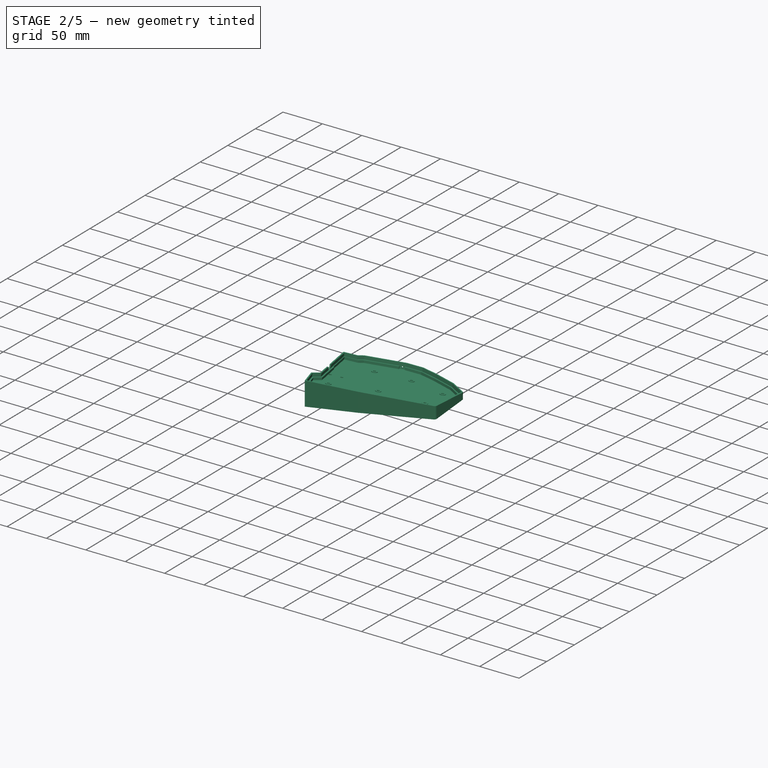
[diagram: stage 2 of 5 — iso view after this stage's code; geometry added in this stage tinted green]
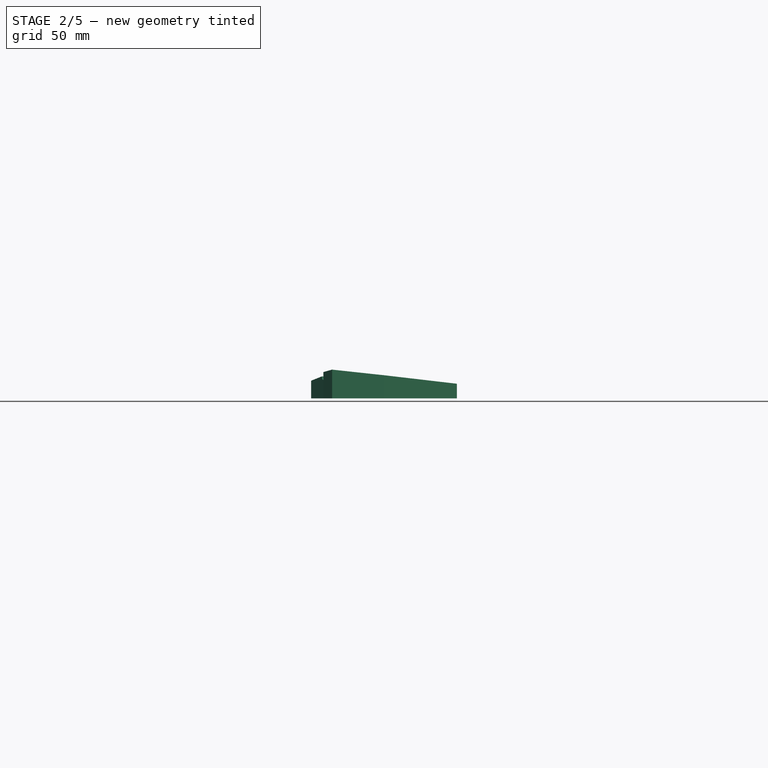
[diagram: stage 2 of 5 — front view after this stage's code; geometry added in this stage tinted green]
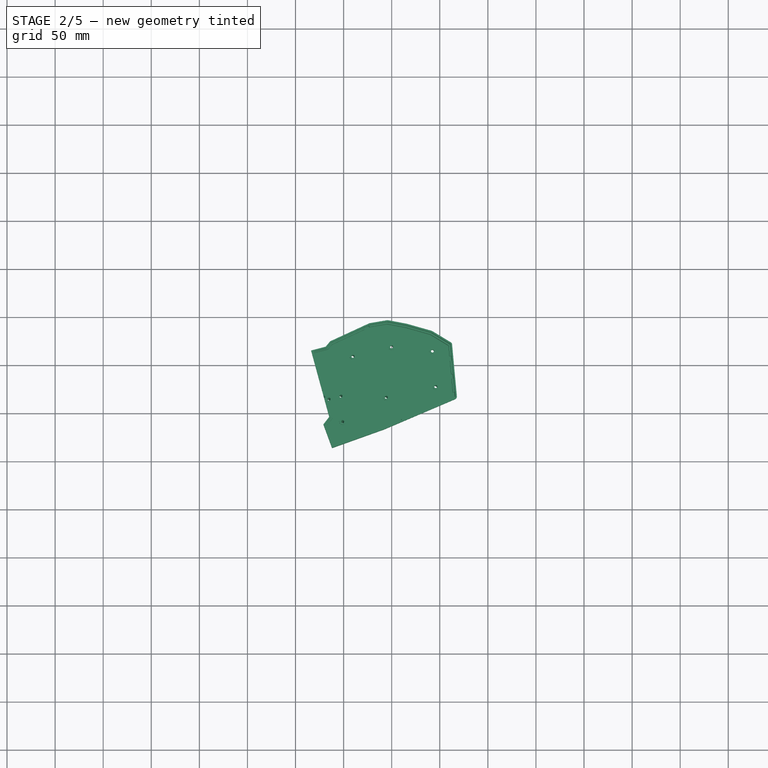
[diagram: stage 2 of 5 — top view after this stage's code; geometry added in this stage tinted green]
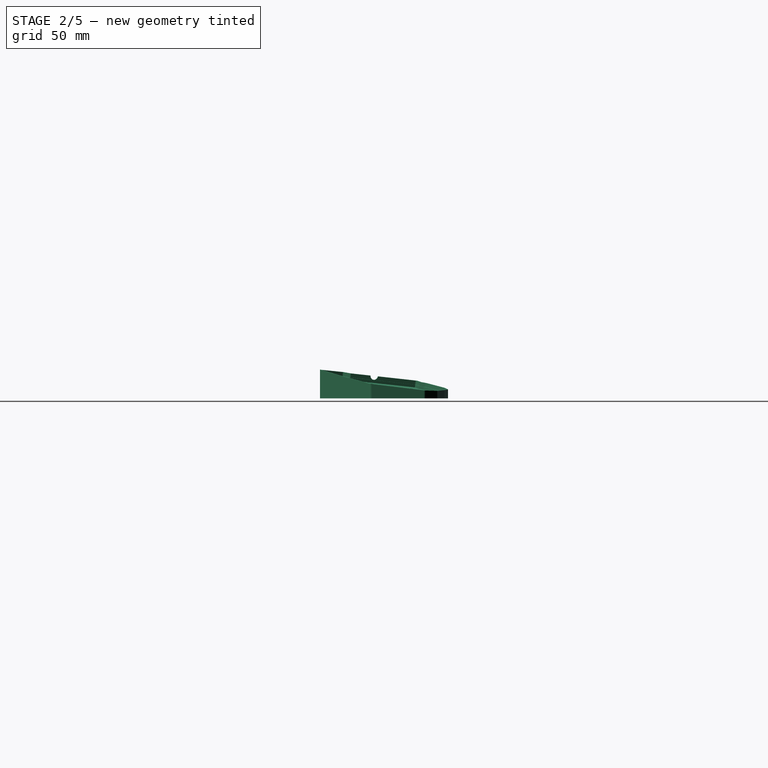
[diagram: stage 2 of 5 — right view after this stage's code; geometry added in this stage tinted green]
FEATURE [Sketcher::SketchObject] Sketch010  label="MountHeight"
  ArcFitTolerance = 1e-06
  AttachmentSupport = -> [Pocket002]
  ExternalGeometry = -> [Pocket002]
  FullyConstrained = true
  MakeInternals = false
  MapMode = 5
  Placement = pos=(1.05589,2.14576,16.879) rot=(-0.897767,0.439591,-0.02783;0.140801rad)
  sketch-geometry (6):
    g0: Circle CenterX=58.904 CenterY=8.1786 CenterZ=0 NormalX=0 NormalY=0 NormalZ=1 AngleXU=0 Radius=3.3
    g1: Circle CenterX=141.802 CenterY=14.4055 CenterZ=0 NormalX=0 NormalY=0 NormalZ=1 AngleXU=0 Radius=3.3
    g2: Circle CenterX=99.1774 CenterY=18.4596 CenterZ=0 NormalX=0 NormalY=0 NormalZ=1 AngleXU=0 Radius=3.3
    g3: Circle CenterX=145.198 CenterY=-22.8375 CenterZ=0 NormalX=0 NormalY=0 NormalZ=1 AngleXU=0 Radius=3.3
    g4: Circle CenterX=93.5528 CenterY=-34.478 CenterZ=0 NormalX=0 NormalY=0 NormalZ=1 AngleXU=0 Radius=3.3
    g5: Circle CenterX=48.1526 CenterY=-60.5563 CenterZ=0 NormalX=0 NormalY=0 NormalZ=1 AngleXU=0 Radius=3.3
  constraints (12):
    c: Coincident(g0,g-3)
    c: Equal(g0,g-3)
    c: Coincident(g1,g-5)
    c: Equal(g1,g-5)
    c: Coincident(g2,g-9)
    c: Equal(g2,g-9)
    c: Coincident(g3,g-8)
    c: Equal(g3,g-8)
    c: Coincident(g4,g-7)
    c: Equal(g4,g-7)
    c: Coincident(g5,g-6)
    c: Equal(g5,g-6)
FEATURE [PartDesign::Pocket] Pocket003
  BaseFeature = -> Pocket002
  Direction = (-0.0619379,-0.125868,-0.990112)
  Length = 2.2
  Length2 = 5
  Profile = -> Sketch010
  ReferenceAxis = -> Sketch010 [N_Axis]
  Refine = true
  Suppressed = false
  Type = 0
FEATURE [Sketcher::SketchObject] Sketch011  label="ResetInset"
  ArcFitTolerance = 1e-06
  AttachmentSupport = -> [Pocket003]
  ExternalGeometry = -> [Pocket003]
  FullyConstrained = true
  MakeInternals = false
  MapMode = 5
  Placement = pos=(-1.73295,3.64094,-0.354449) rot=(0.948306,0.235027,0.213258;1.52669rad)
  sketch-geometry (4):
    g0: LineSegment StartX=80.2879 StartY=11.5722 StartZ=0 EndX=86.2738 EndY=11.161 EndZ=0
    g1: LineSegment StartX=86.2738 StartY=11.161 StartZ=0 EndX=86.1538 EndY=9.4151 EndZ=0
    g2: LineSegment StartX=86.1538 StartY=9.4151 StartZ=0 EndX=80.1679 EndY=9.82631 EndZ=0
    g3: LineSegment StartX=80.1679 StartY=9.82631 StartZ=0 EndX=80.2879 EndY=11.5722 EndZ=0
  constraints (10):
    c: Coincident(g0,g-3)
    c: Coincident(g0,g-4)
    c: Coincident(g1,g0)
    c: PointOnObject(g1,g-4)
    c: Coincident(g2,g1)
    c: PointOnObject(g2,g-3)
    c: Coincident(g3,g2)
    c: Coincident(g3,g0)
    c: Distance(g1,g1) = 1.75
    c: Parallel(g0,g2)
FEATURE [PartDesign::Pocket] Pocket004
  BaseFeature = -> Pocket003
  Direction = (-0.428115,0.899472,-0.0875645)
  Length = 0.8
  Length2 = 5
  Profile = -> Sketch011
  ReferenceAxis = -> Sketch011 [N_Axis]
  Refine = true
  Suppressed = false
  Type = 0
FEATURE [Sketcher::SketchObject] Sketch012  label="ResetHole"
  ArcFitTolerance = 1e-06
  AttachmentSupport = -> [Pocket004]
  ExternalGeometry = -> [Pocket004]
  FullyConstrained = true
  MakeInternals = false
  MapMode = 5
  Placement = pos=(-2.07544,4.36051,-0.4245) rot=(0.948306,0.235027,0.213258;1.52669rad)
  sketch-geometry (1):
    g0: Circle CenterX=83.2209 CenterY=10.4936 CenterZ=0 NormalX=0 NormalY=0 NormalZ=1 AngleXU=0 Radius=0.75
  constraints (2):
    c: Diameter(g0) = 1.5
    c: Symmetric(g-4,g-3,g0)
FEATURE [PartDesign::Pocket] Pocket005
  BaseFeature = -> Pocket004
  Direction = (-0.428115,0.899472,-0.0875645)
  Length = 5
  Length2 = 5
  Profile = -> Sketch012
  ReferenceAxis = -> Sketch012 [N_Axis]
  Refine = true
  Suppressed = false
  Type = 0
FEATURE [Sketcher::SketchObject] Sketch013  label="TRRSCutout"
  ArcFitTolerance = 1e-06
  AttachmentSupport = -> [Pocket005]
  ExternalGeometry = -> [Pocket005]
  FullyConstrained = true
  MakeInternals = false
  MapMode = 5
  Placement = pos=(18.7211,4.90998,-1.79531) rot=(0.50148,0.633941,0.588758;2.30758rad)
  sketch-geometry (1):
    g0: Circle CenterX=-35.5095 CenterY=26.0886 CenterZ=0 NormalX=0 NormalY=0 NormalZ=1 AngleXU=0 Radius=4.1
  constraints (3):
    c: Diameter(g0) = 8.2
    c: Distance(g0,g-3) = 45.6
    c: Distance(g0,g-4) = 4.2
FEATURE [PartDesign::Pocket] Pocket006
  BaseFeature = -> Pocket005
  Direction = (-0.963151,-0.252606,0.092364)
  Length = 5
  Length2 = 5
  Profile = -> Sketch013
  ReferenceAxis = -> Sketch013 [N_Axis]
  Refine = true
  Suppressed = false
  Type = 0
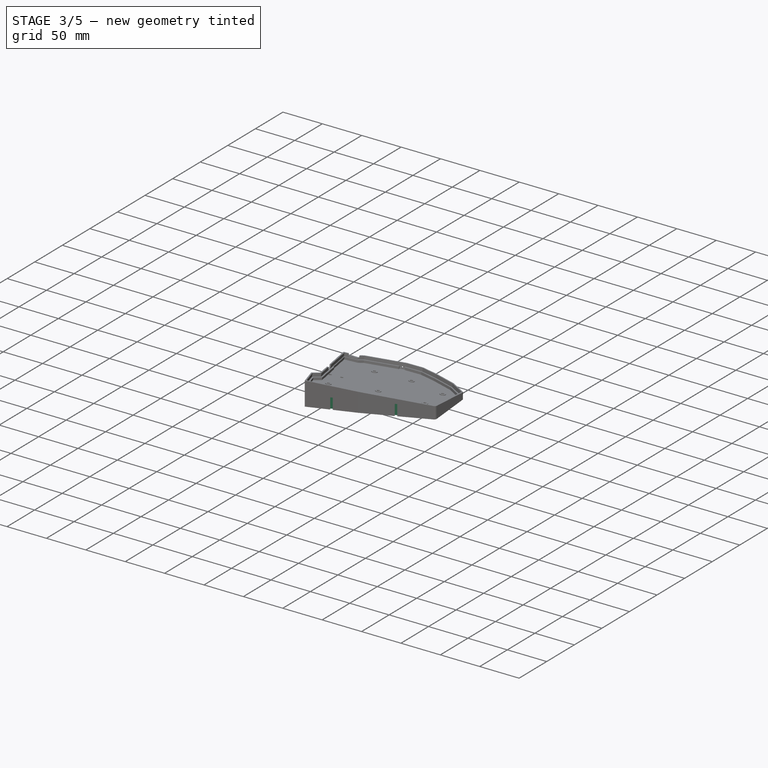
[diagram: stage 3 of 5 — iso view after this stage's code; geometry added in this stage tinted green]
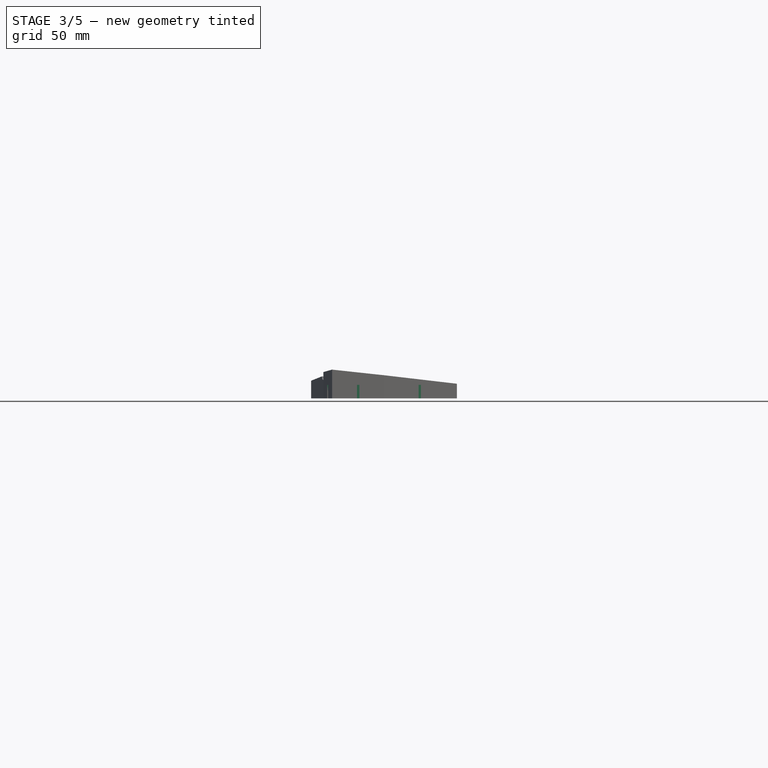
[diagram: stage 3 of 5 — front view after this stage's code; geometry added in this stage tinted green]
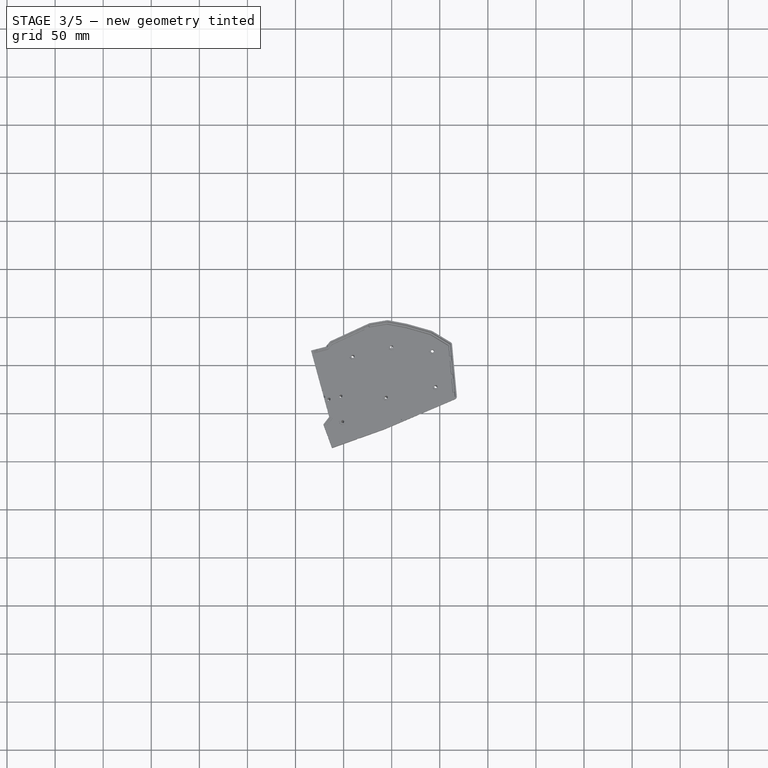
[diagram: stage 3 of 5 — top view after this stage's code; geometry added in this stage tinted green]
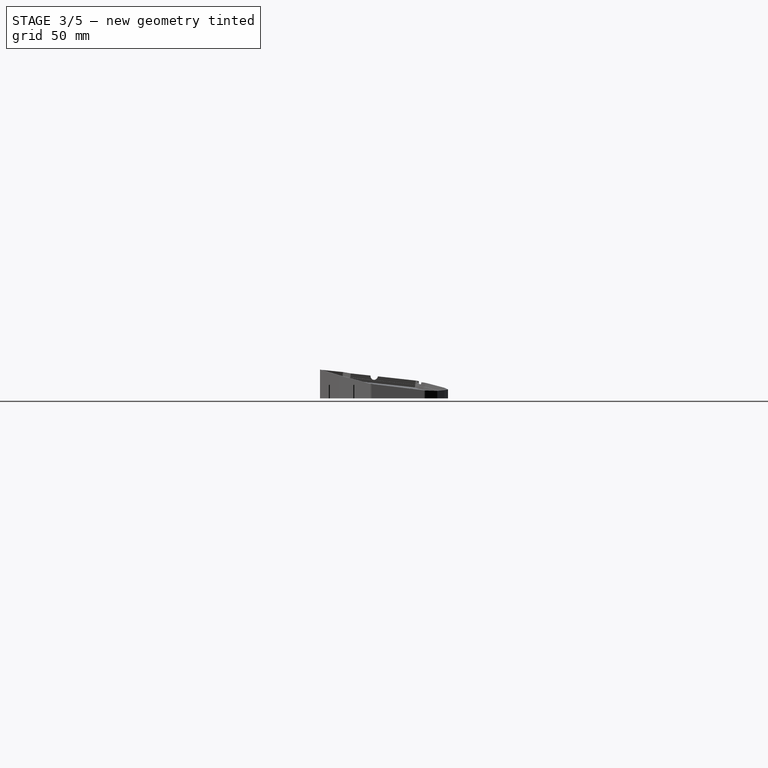
[diagram: stage 3 of 5 — right view after this stage's code; geometry added in this stage tinted green]
FEATURE [Sketcher::SketchObject] Sketch015  label="USB Cutout"
  ArcFitTolerance = 1e-06
  AttachmentSupport = -> [Pocket006]
  FullyConstrained = true
  MakeInternals = false
  MapMode = 5
  Placement = pos=(-1.83172,6.71392,-0.738924) rot=(0.980658,0.145776,0.130612;1.48061rad)
  sketch-geometry (13):
    g0: LineSegment StartX=25.1254 StartY=22.3813 StartZ=0 EndX=24.8816 EndY=18.5892 EndZ=0
    g1: LineSegment StartX=26.3756 StartY=16.8898 StartZ=0 EndX=35.1574 EndY=16.325 EndZ=0
    g2: LineSegment StartX=36.8568 StartY=17.8191 StartZ=0 EndX=37.1007 EndY=21.6112 EndZ=0
    g3: LineSegment StartX=35.6067 StartY=23.3106 StartZ=0 EndX=26.8248 EndY=23.8754 EndZ=0
    g4: GeomPoint [constr] X=30.9911 Y=20.1002 Z=0
    g5: ArcOfCircle CenterX=26.4783 CenterY=18.4865 CenterZ=0 NormalX=0 NormalY=0 NormalZ=1 AngleXU=0 Radius=1.6 StartAngle=3.07737 EndAngle=4.64817
    g6: GeomPoint [constr] X=24.7789 Y=16.9925 Z=0
    g7: ArcOfCircle CenterX=26.7221 CenterY=22.2787 CenterZ=0 NormalX=0 NormalY=0 NormalZ=1 AngleXU=0 Radius=1.6 StartAngle=1.50658 EndAngle=3.07737
    g8: GeomPoint [constr] X=25.2281 Y=23.978 Z=0
    g9: ArcOfCircle CenterX=35.504 CenterY=21.7139 CenterZ=0 NormalX=0 NormalY=0 NormalZ=1 AngleXU=0 Radius=1.6 StartAngle=6.21897 EndAngle=7.78976
    g10: GeomPoint [constr] X=37.2034 Y=23.2079 Z=0
    g11: ArcOfCircle CenterX=35.2601 CenterY=17.9217 CenterZ=0 NormalX=0 NormalY=0 NormalZ=1 AngleXU=0 Radius=1.6 StartAngle=4.64817 EndAngle=6.21897
    g12: GeomPoint [constr] X=36.7541 Y=16.2224 Z=0
  constraints (30):
    c: Distance(g4,g-3) = 10.2
    c: Distance(g4,g-4) = 5
    c: Parallel(g3,g1)
    c: Parallel(g2,g0)
    c: Distance(g10,g8) = 12
    c: Distance(g12,g10) = 7
    c: Distance(g4,g3) = 3.5
    c: Distance(g4,g2) = 6
    c: Parallel(g1,g-4)
    c: PointOnObject(g6,g0)
    c: PointOnObject(g6,g1)
    c: Tangent(g0,g5) = -1.5708
    c: Tangent(g1,g5) = -1.5708
    c: PointOnObject(g8,g0)
    c: PointOnObject(g8,g3)
    c: Tangent(g0,g7) = -1.5708
    c: Tangent(g3,g7) = -1.5708
    c: PointOnObject(g10,g2)
    c: PointOnObject(g10,g3)
    c: Tangent(g2,g9) = -1.5708
    c: Tangent(g3,g9) = -1.5708
    c: PointOnObject(g12,g1)
    c: PointOnObject(g12,g2)
    c: Tangent(g1,g11) = -1.5708
    c: Tangent(g2,g11) = -1.5708
    c: Equal(g3,g1)
    c: Equal(g0,g2)
    c: Radius(g7) = 1.6
    c: Radius(g5) = 1.6
    c: Angle(g2,g1) = 1.5708
FEATURE [PartDesign::Pocket] Pocket008
  BaseFeature = -> Pocket006
  Direction = (-0.261734,0.959347,-0.105584)
  Length = 5
  Length2 = 5
  Profile = -> Sketch015
  ReferenceAxis = -> Sketch015 [N_Axis]
  Refine = true
  Suppressed = false
  Type = 0
FEATURE [Sketcher::SketchObject] Sketch017  label="DovetailSockets"
  ArcFitTolerance = 1e-06
  AttachmentSupport = -> [Pocket008]
  FullyConstrained = true
  MakeInternals = false
  MapMode = 5
  Placement = pos=(0,0,0) rot=(1,0,0;3.14159rad)
  sketch-geometry (26):
    g0: LineSegment StartX=33.5196 StartY=47.9216 StartZ=0 EndX=32.8352 EndY=45.4133 EndZ=0
    g1: LineSegment StartX=32.8352 StartY=45.4133 StartZ=0 EndX=34.9181 EndY=43.5494 EndZ=0
    g2: LineSegment StartX=34.9181 StartY=43.5494 StartZ=0 EndX=36.2604 EndY=48.4695 EndZ=0
    g3: LineSegment StartX=36.2604 StartY=48.4695 StartZ=0 EndX=33.5196 EndY=47.9216 EndZ=0
    g4: GeomPoint X=33.1774 Y=46.6675 Z=0
    g5: GeomPoint X=36.2604 Y=48.4695 Z=0
    g6: LineSegment StartX=33.8846 StartY=74.7418 StartZ=0 EndX=32.9844 EndY=72.3026 EndZ=0
    g7: LineSegment StartX=32.9844 StartY=72.3026 StartZ=0 EndX=34.8971 EndY=70.2644 EndZ=0
    g8: LineSegment StartX=34.8971 StartY=70.2644 StartZ=0 EndX=36.6627 EndY=75.049 EndZ=0
    g9: LineSegment StartX=36.6627 StartY=75.049 StartZ=0 EndX=33.8846 EndY=74.7418 EndZ=0
    g10: GeomPoint X=33.4345 Y=73.5222 Z=0
    g11: GeomPoint X=36.6627 Y=75.049 Z=0
    g12: LineSegment StartX=66.3895 StartY=75.8066 StartZ=0 EndX=63.9413 EndY=76.6823 EndZ=0
    g13: LineSegment StartX=63.9413 StartY=76.6823 StartZ=0 EndX=61.9224 EndY=74.7493 EndZ=0
    g14: LineSegment StartX=61.9224 StartY=74.7493 StartZ=0 EndX=66.7245 EndY=73.0317 EndZ=0
    g15: LineSegment StartX=66.7245 StartY=73.0317 StartZ=0 EndX=66.3895 EndY=75.8066 EndZ=0
    g16: GeomPoint X=65.1654 Y=76.2445 Z=0
    g17: GeomPoint X=66.7245 Y=73.0317 Z=0
    g18: LineSegment StartX=130.406 StartY=50.2736 StartZ=0 EndX=128.014 EndY=51.2943 EndZ=0
    g19: LineSegment StartX=128.014 StartY=51.2943 StartZ=0 EndX=125.883 EndY=49.4858 EndZ=0
    g20: LineSegment StartX=125.883 StartY=49.4858 StartZ=0 EndX=130.574 EndY=47.4836 EndZ=0
    g21: LineSegment StartX=130.574 StartY=47.4836 StartZ=0 EndX=130.406 EndY=50.2736 EndZ=0
    g22: GeomPoint [constr] X=129.21 Y=50.784 Z=0
    g23: GeomPoint X=130.574 Y=47.4836 Z=0
    g24: GeomPoint X=129.21 Y=50.784 Z=0
    g25: GeomPoint [constr] X=65.1654 Y=76.2445 Z=0
  constraints (56):
    c: Coincident(g0,g1)
    c: Coincident(g1,g2)
    c: Coincident(g2,g3)
    c: Coincident(g3,g0)
    c: Distance(g0,g0) = 2.6
    c: Parallel(g0,g2)
    c: Distance(g2,g2) = 5.1
    c: Distance(g2,g0) = 2.5
    c: Symmetric(g0,g0,g4)
    c: Coincident(g5,g2)
    c: Equal(g3,g1)
    c: Coincident(g6,g7)
    c: Coincident(g7,g8)
    c: Coincident(g8,g9)
    c: Coincident(g9,g6)
    c: Distance(g6,g6) = 2.6
    c: Parallel(g6,g8)
    c: Distance(g8,g8) = 5.1
    c: Distance(g8,g6) = 2.5
    c: Symmetric(g6,g6,g10)
    c: Coincident(g11,g8)
    c: Equal(g9,g7)
    c: PointOnObject(g4,g-5)
    c: Parallel(g-5,g0)
    c: Distance(g-5,g4) = 7.25
    c: PointOnObject(g10,g-3)
    c: Parallel(g6,g-3)
    c: Distance(g10,g-3) = 13.25
    c: Coincident(g12,g13)
    c: Coincident(g13,g14)
    c: Coincident(g14,g15)
    c: Coincident(g15,g12)
    c: Distance(g12,g12) = 2.6
    c: Parallel(g12,g14)
    c: Distance(g14,g14) = 5.1
    c: Distance(g14,g12) = 2.5
    c: Symmetric(g12,g12,g16)
    c: Coincident(g17,g14)
    c: Equal(g15,g13)
    c: Coincident(g18,g19)
    c: Coincident(g19,g20)
    c: Coincident(g20,g21)
    c: Coincident(g21,g18)
    c: Distance(g18,g18) = 2.6
    c: Parallel(g18,g20)
    c: Distance(g20,g20) = 5.1
    c: Distance(g20,g18) = 2.5
    c: Symmetric(g18,g18,g22)
    c: Coincident(g23,g20)
    c: Equal(g21,g19)
    c: Parallel(g12,g-6)
    c: Symmetric(g-7,g-7,g24)
    c: Coincident(g22,g24)
    c: Parallel(g18,g-7)
    c: Symmetric(g-6,g-6,g25)
    c: Coincident(g25,g16)
FEATURE [PartDesign::Pocket] Pocket010
  BaseFeature = -> Pocket008
  Direction = (0,0,1)
  Length = 14
  Length2 = 5
  Profile = -> Sketch017
  ReferenceAxis = -> Sketch017 [N_Axis]
  Refine = true
  Suppressed = false
  Type = 0
FEATURE [Sketcher::SketchObject] Sketch019  label="SlightlyThickenCutout"
  ArcFitTolerance = 1e-06
  AttachmentSupport = -> [Pocket010]
  FullyConstrained = true
  MakeInternals = false
  MapMode = 5
  Placement = pos=(70.3377,30.0255,-8.21709) rot=(0.715011,-0.449156,-0.535741;1.82629rad)
  sketch-geometry (3):
    g0: LineSegment StartX=94.9339 StartY=30.3111 StartZ=0 EndX=95.344 EndY=27.3393 EndZ=0
    g1: LineSegment StartX=95.344 StartY=27.3393 StartZ=0 EndX=94.9339 EndY=27.2827 EndZ=0
    g2: LineSegment StartX=94.9339 StartY=27.2827 StartZ=0 EndX=94.9339 EndY=30.3111 EndZ=0
  constraints (7):
    c: Coincident(g0,g-3)
    c: Coincident(g0,g-4)
    c: Coincident(g1,g0)
    c: PointOnObject(g1,g-4)
    c: Coincident(g2,g1)
    c: Coincident(g2,g-3)
    c: Vertical(g2)
FEATURE [PartDesign::Pad] Pad001
  BaseFeature = -> Pocket010
  Direction = (-0.914446,-0.390355,0.106829)
  Length = 21
  Length2 = 10
  Profile = -> Sketch019
  ReferenceAxis = -> Sketch019 [N_Axis]
  Refine = true
  Suppressed = false
  Type = 0
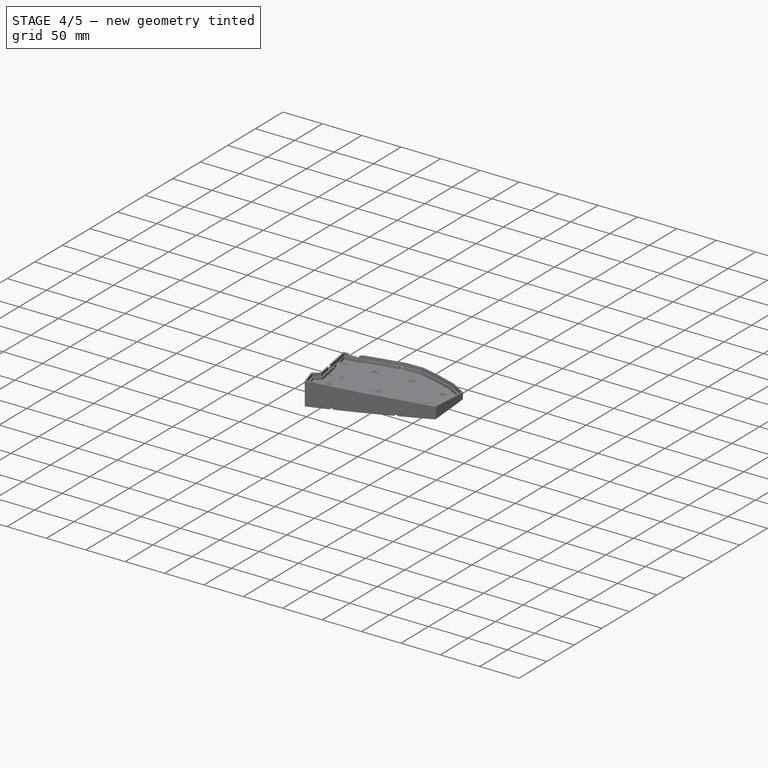
[diagram: stage 4 of 5 — iso view after this stage's code; geometry added in this stage tinted green]
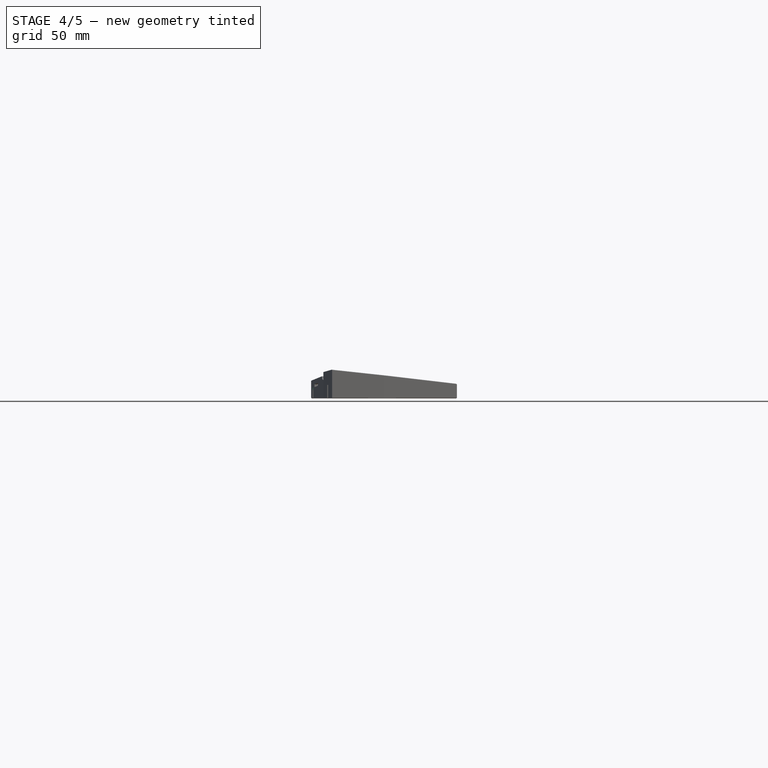
[diagram: stage 4 of 5 — front view after this stage's code; geometry added in this stage tinted green]
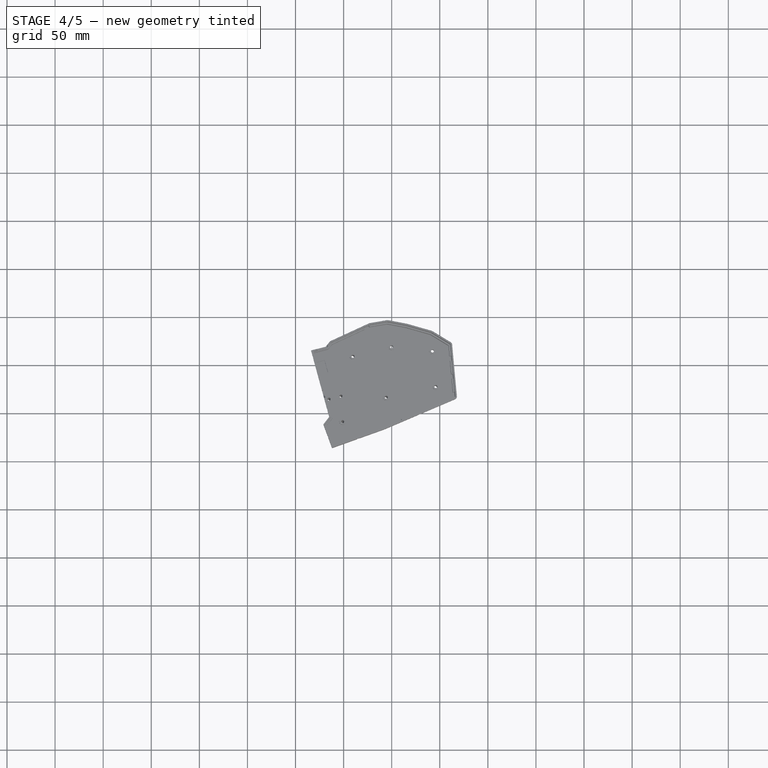
[diagram: stage 4 of 5 — top view after this stage's code; geometry added in this stage tinted green]
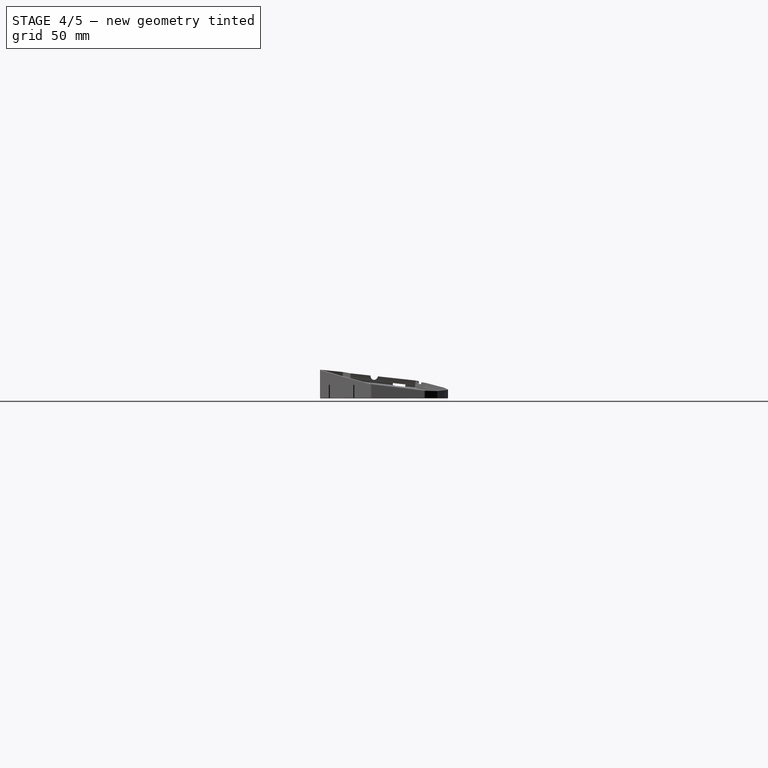
[diagram: stage 4 of 5 — right view after this stage's code; geometry added in this stage tinted green]
FEATURE [Sketcher::SketchObject] Sketch020  label="DovetailCutoutShort"
  ArcFitTolerance = 1e-06
  AttachmentSupport = -> [Pocket010]
  ExternalGeometry = -> [Pad001]
  FullyConstrained = true
  MakeInternals = false
  MapMode = 5
  Placement = pos=(0,0,0) rot=(1,0,0;3.14159rad)
  sketch-geometry (6):
    g0: LineSegment StartX=18.4898 StartY=-7.16798 StartZ=0 EndX=17.8054 EndY=-9.6763 EndZ=0
    g1: LineSegment StartX=17.8054 StartY=-9.6763 StartZ=0 EndX=19.8883 EndY=-11.5402 EndZ=0
    g2: LineSegment StartX=19.8883 StartY=-11.5402 StartZ=0 EndX=21.2306 EndY=-6.62006 EndZ=0
    g3: LineSegment StartX=21.2306 StartY=-6.62006 StartZ=0 EndX=18.4898 EndY=-7.16798 EndZ=0
    g4: GeomPoint X=18.1476 Y=-8.42214 Z=0
    g5: GeomPoint X=21.2306 Y=-6.62006 Z=0
  constraints (14):
    c: Coincident(g0,g1)
    c: Coincident(g1,g2)
    c: Coincident(g2,g3)
    c: Coincident(g3,g0)
    c: Distance(g0,g0) = 2.6
    c: Parallel(g0,g2)
    c: Distance(g2,g2) = 5.1
    c: Distance(g2,g0) = 2.5
    c: Symmetric(g0,g0,g4)
    c: Coincident(g5,g2)
    c: Equal(g3,g1)
    c: Distance(g4,g-3) = 7.25
    c: PointOnObject(g4,g-3)
    c: Parallel(g0,g-3)
FEATURE [PartDesign::Pocket] Pocket029
  BaseFeature = -> Pad001
  Direction = (0,0,1)
  Length = 11
  Length2 = 5
  Profile = -> Sketch020
  ReferenceAxis = -> Sketch020 [N_Axis]
  Refine = true
  Suppressed = false
  Type = 0
FEATURE [PartDesign::Fillet] Fillet
  Base = -> Pocket029 [Edge308,Edge60,Edge61,Edge62,Edge63,Edge64,Edge65,Edge66,Edge67,Edge68,Edge69,Edge70]
  BaseFeature = -> Pocket029
  Radius = 0.5
  Refine = true
  SupportTransform = false
  Suppressed = false
  UseAllEdges = false
FEATURE [PartDesign::Chamfer] Chamfer
  Angle = 45
  Base = -> Fillet [Face36]
  BaseFeature = -> Fillet
  ChamferType = 0
  FlipDirection = false
  Refine = true
  Size = 0.5
  Size2 = 1
  SupportTransform = false
  Suppressed = false
  UseAllEdges = false
FEATURE [Sketcher::SketchObject] Sketch016  label="RibbonCutout"
  ArcFitTolerance = 1e-06
  AttachmentSupport = -> [Chamfer]
  ExternalGeometry = -> [Pocket008]
  FullyConstrained = true
  MakeInternals = false
  MapMode = 5
  Placement = pos=(19.6842,5.16259,-1.88767) rot=(0.50148,0.633941,0.588758;2.30758rad)
  sketch-geometry (4):
    g0: LineSegment StartX=-15.761 StartY=18.253 StartZ=0 EndX=-1.87998 EndY=16.4318 EndZ=0
    g1: LineSegment StartX=-1.87998 StartY=16.4318 StartZ=0 EndX=-2.27025 EndY=13.4573 EndZ=0
    g2: LineSegment StartX=-2.27025 StartY=13.4573 StartZ=0 EndX=-16.1513 EndY=15.2785 EndZ=0
    g3: LineSegment StartX=-16.1513 StartY=15.2785 StartZ=0 EndX=-15.761 EndY=18.253 EndZ=0
  constraints (12):
    c: Coincident(g0,g1)
    c: Coincident(g1,g2)
    c: Coincident(g2,g3)
    c: Coincident(g3,g0)
    c: Parallel(g0,g2)
    c: Parallel(g3,g1)
    c: Perpendicular(g3,g-5)
    c: Distance(g0,g0) = 14
    c: Distance(g1,g1) = 3
    c: Parallel(g-5,g0)
    c: Distance(g0,g-5) = 1
    c: Distance(g0,g-4) = 11
FEATURE [PartDesign::Pocket] Pocket030
  BaseFeature = -> Chamfer
  Direction = (-0.963151,-0.252606,0.092364)
  Length = 18
  Length2 = 5
  Midplane = true
  Profile = -> Sketch016
  ReferenceAxis = -> Sketch016 [N_Axis]
  Refine = true
  Suppressed = false
  Type = 0
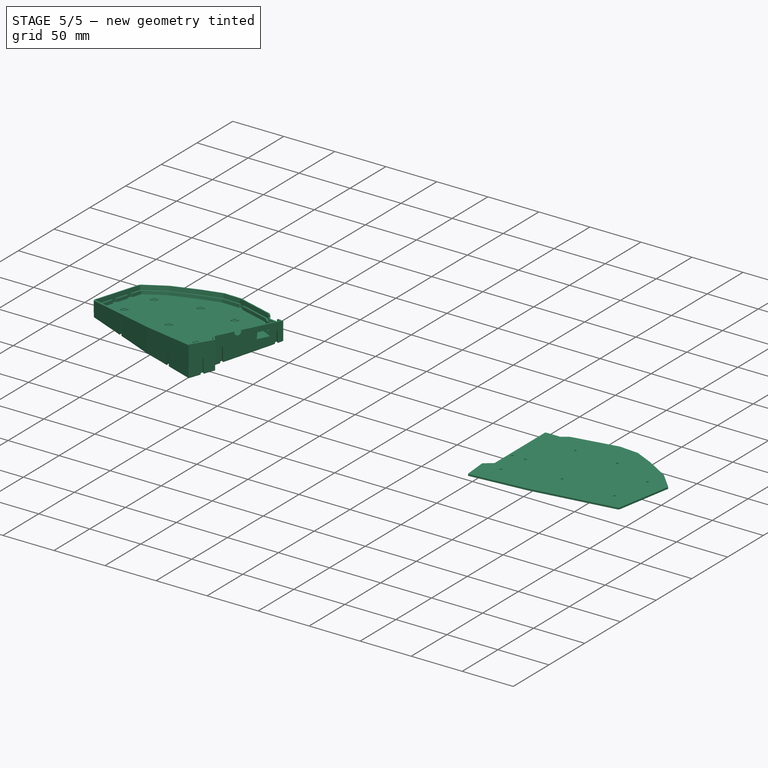
[diagram: stage 5 of 5 — iso view after this stage's code; geometry added in this stage tinted green]
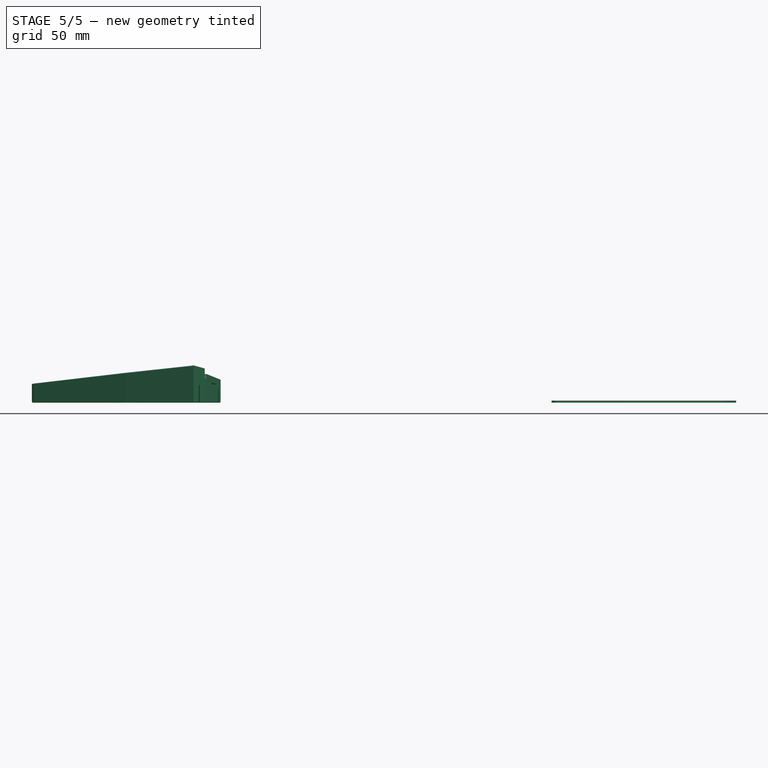
[diagram: stage 5 of 5 — front view after this stage's code; geometry added in this stage tinted green]
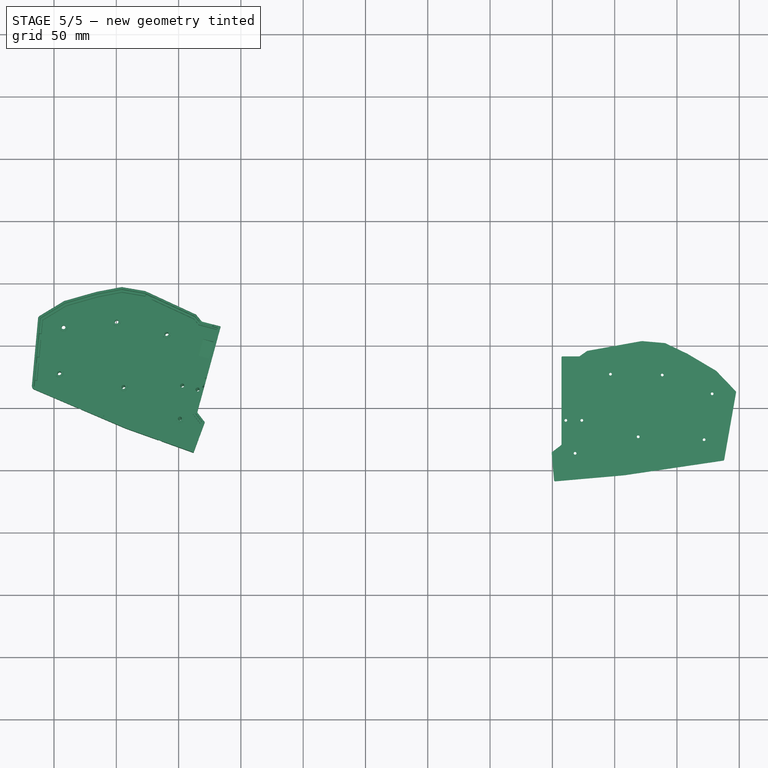
[diagram: stage 5 of 5 — top view after this stage's code; geometry added in this stage tinted green]
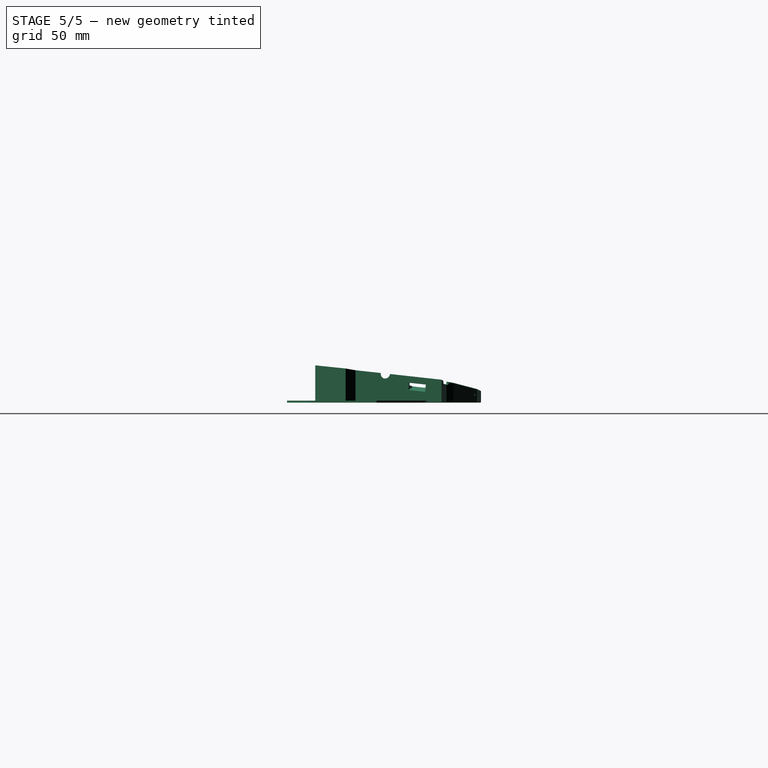
[diagram: stage 5 of 5 — right view after this stage's code; geometry added in this stage tinted green]
FEATURE [Part::Feature] Line
  shape: bbox 9.528 x 54.04 x 2e-07 mm, 0 faces, 0 solids (baked)
FEATURE [Part::Feature] Line001
  shape: bbox 15.59 x 16.27 x 2e-07 mm, 0 faces, 0 solids (baked)
FEATURE [Part::Feature] Line002
  shape: bbox 22.91 x 13.58 x 2e-07 mm, 0 faces, 0 solids (baked)
FEATURE [Part::Feature] Line003
  shape: bbox 17.81 x 8.506 x 2e-07 mm, 0 faces, 0 solids (baked)
FEATURE [Part::Feature] Line004
  shape: bbox 18.32 x 1.602 x 2e-07 mm, 0 faces, 0 solids (baked)
FEATURE [Part::Feature] Line005
  shape: bbox 43.51 x 7.83 x 2e-07 mm, 0 faces, 0 solids (baked)
FEATURE [Part::Feature] Line006
  shape: bbox 5.709 x 4.038 x 2e-07 mm, 0 faces, 0 solids (baked)
FEATURE [Part::Feature] Line007
  shape: bbox 13.18 x 2e-07 x 2e-07 mm, 0 faces, 0 solids (baked)
FEATURE [Part::Feature] Line008
  shape: bbox 2e-07 x 69.61 x 2e-07 mm, 0 faces, 0 solids (baked)
FEATURE [Part::Feature] Line009
  shape: bbox 7.059 x 5.427 x 2e-07 mm, 0 faces, 0 solids (baked)
FEATURE [Part::Feature] Line010
  shape: bbox 1.902 x 21.74 x 2e-07 mm, 0 faces, 0 solids (baked)
FEATURE [Part::Feature] Line011
  shape: bbox 54.86 x 4.8 x 2e-07 mm, 0 faces, 0 solids (baked)
FEATURE [Part::Feature] Line012
  shape: bbox 79.74 x 11.8 x 2e-07 mm, 0 faces, 0 solids (baked)
FEATURE [Part::Feature] Arc
  shape: bbox 0.2779 x 0.8654 x 2e-07 mm, 0 faces, 0 solids (baked)
FEATURE [Part::Feature] Arc001
  shape: bbox 0.2121 x 0.1684 x 2e-07 mm, 0 faces, 0 solids (baked)
FEATURE [Part::Feature] Arc002
  shape: bbox 0.07912 x 0.04223 x 2e-07 mm, 0 faces, 0 solids (baked)
FEATURE [Part::Feature] Arc003
  shape: bbox 0.3437 x 0.09378 x 2e-07 mm, 0 faces, 0 solids (baked)
FEATURE [Part::Feature] Arc004
  shape: bbox 0.2643 x 0.01581 x 2e-07 mm, 0 faces, 0 solids (baked)
FEATURE [Part::Feature] Arc005
  shape: bbox 0.4004 x 0.1678 x 2e-07 mm, 0 faces, 0 solids (baked)
FEATURE [Part::Feature] Arc006
  shape: bbox 0.5775 x 0.1836 x 2e-07 mm, 0 faces, 0 solids (baked)
FEATURE [Part::Feature] Arc007
  shape: bbox 1 x 1 x 2e-07 mm, 0 faces, 0 solids (baked)
FEATURE [Part::Feature] Arc008
  shape: bbox 0.3905 x 0.7928 x 2e-07 mm, 0 faces, 0 solids (baked)
FEATURE [Part::Feature] Arc009
  shape: bbox 0.3905 x 0.8799 x 2e-07 mm, 0 faces, 0 solids (baked)
FEATURE [Part::Feature] Arc010
  shape: bbox 1.083 x 0.9128 x 2e-07 mm, 0 faces, 0 solids (baked)
FEATURE [Part::Feature] Arc011
  shape: bbox 0.05919 x 0.006962 x 2e-07 mm, 0 faces, 0 solids (baked)
FEATURE [Part::Feature] Arc012
  shape: bbox 0.8385 x 0.8156 x 2e-07 mm, 0 faces, 0 solids (baked)
FEATURE [Part::Feature] Line013
  shape: bbox 9.528 x 54.04 x 2e-07 mm, 0 faces, 0 solids (baked)
FEATURE [Part::Feature] Line014
  shape: bbox 15.59 x 16.27 x 2e-07 mm, 0 faces, 0 solids (baked)
FEATURE [Part::Feature] Line015
  shape: bbox 22.91 x 13.58 x 2e-07 mm, 0 faces, 0 solids (baked)
FEATURE [Part::Feature] Line016
  shape: bbox 17.81 x 8.506 x 2e-07 mm, 0 faces, 0 solids (baked)
FEATURE [Part::Feature] Line017
  shape: bbox 18.32 x 1.602 x 2e-07 mm, 0 faces, 0 solids (baked)
FEATURE [Part::Feature] Line018
  shape: bbox 43.51 x 7.83 x 2e-07 mm, 0 faces, 0 solids (baked)
FEATURE [Part::Feature] Line019
  shape: bbox 5.709 x 4.038 x 2e-07 mm, 0 faces, 0 solids (baked)
FEATURE [Part::Feature] Line020
  shape: bbox 13.18 x 2e-07 x 2e-07 mm, 0 faces, 0 solids (baked)
FEATURE [Part::Feature] Line021
  shape: bbox 2e-07 x 69.61 x 2e-07 mm, 0 faces, 0 solids (baked)
FEATURE [Part::Feature] Line022
  shape: bbox 7.059 x 5.427 x 2e-07 mm, 0 faces, 0 solids (baked)
FEATURE [Part::Feature] Line023
  shape: bbox 1.902 x 21.74 x 2e-07 mm, 0 faces, 0 solids (baked)
FEATURE [Part::Feature] Line024
  shape: bbox 54.86 x 4.8 x 2e-07 mm, 0 faces, 0 solids (baked)
FEATURE [Part::Feature] Line025
  shape: bbox 79.74 x 11.8 x 2e-07 mm, 0 faces, 0 solids (baked)
FEATURE [Part::Feature] Arc013
  shape: bbox 0.2779 x 0.8654 x 2e-07 mm, 0 faces, 0 solids (baked)
FEATURE [Part::Feature] Arc014
  shape: bbox 0.2121 x 0.1684 x 2e-07 mm, 0 faces, 0 solids (baked)
FEATURE [Part::Feature] Arc015
  shape: bbox 0.07912 x 0.04223 x 2e-07 mm, 0 faces, 0 solids (baked)
FEATURE [Part::Feature] Arc016
  shape: bbox 0.3437 x 0.09378 x 2e-07 mm, 0 faces, 0 solids (baked)
FEATURE [Part::Feature] Arc017
  shape: bbox 0.2643 x 0.01581 x 2e-07 mm, 0 faces, 0 solids (baked)
FEATURE [Part::Feature] Arc018
  shape: bbox 0.4004 x 0.1678 x 2e-07 mm, 0 faces, 0 solids (baked)
FEATURE [Part::Feature] Arc019
  shape: bbox 0.5775 x 0.1836 x 2e-07 mm, 0 faces, 0 solids (baked)
FEATURE [Part::Feature] Arc020
  shape: bbox 1 x 1 x 2e-07 mm, 0 faces, 0 solids (baked)
FEATURE [Part::Feature] Arc021
  shape: bbox 0.3905 x 0.7928 x 2e-07 mm, 0 faces, 0 solids (baked)
FEATURE [Part::Feature] Arc022
  shape: bbox 0.3905 x 0.8799 x 2e-07 mm, 0 faces, 0 solids (baked)
FEATURE [Part::Feature] Arc023
  shape: bbox 1.083 x 0.9128 x 2e-07 mm, 0 faces, 0 solids (baked)
FEATURE [Part::Feature] Arc024
  shape: bbox 0.05919 x 0.006962 x 2e-07 mm, 0 faces, 0 solids (baked)
FEATURE [Part::Feature] Arc025
  shape: bbox 0.8385 x 0.8156 x 2e-07 mm, 0 faces, 0 solids (baked)
FEATURE [Part::Feature] Circle
  shape: bbox 2.2 x 2.2 x 2e-07 mm, 0 faces, 0 solids (baked)
FEATURE [Part::Feature] Circle001 .. Circle015  x15 (patterned run collapsed; names and placements below)
  shape: bbox 2.2 x 2.2 x 2e-07 mm, 0 faces, 0 solids (baked)
FEATURE [App::FeaturePython] Layer  label="0"  # WARN: FeaturePython — macro-defined, semantics opaque (R4)
  Group = -> [Line,Line001,Line002,Line003,Line004,Line005,Line006,Line007,Line008,Line009,Line010,Line011,Line012,Arc,Arc001,Arc002,Arc003,Arc004,Arc005,Arc006,Arc007,Arc008,Arc009,Arc010,Arc011,Arc012,Line013,Line014,Line015,Line016,Line017,Line018,Line019,Line020,Line021,Line022,Line023,Line024,Line025,Arc013,Arc014,Arc015,Arc016,Arc017,Arc018,Arc019,Arc020,Arc021,Arc022,Arc023,Arc024,Arc025,Circle,+15 more]
FEATURE [App::DocumentObjectGroupPython] LayerContainer  label="Layers"  # scripted group (container) (typed FeaturePython)
  Group = -> [Layer]
FEATURE [Sketcher::SketchObject] Sketch
  ArcFitTolerance = 1e-06
  FullyConstrained = false
  MakeInternals = false
  sketch-geometry (34):
    g0: LineSegment StartX=252.435 StartY=-108.657 StartZ=0 EndX=307.295 EndY=-103.857 EndZ=0
    g1: ArcOfCircle CenterX=252.347 CenterY=-107.66 CenterZ=0 NormalX=0 NormalY=0 NormalZ=1 AngleXU=0 Radius=1 StartAngle=3.22886 EndAngle=4.79966
    g2: LineSegment StartX=249.449 StartY=-86.0035 StartZ=0 EndX=251.351 EndY=-107.747 EndZ=0
    g3: ArcOfCircle CenterX=250.445 CenterY=-85.9163 CenterZ=0 NormalX=0 NormalY=0 NormalZ=1 AngleXU=0 Radius=1 StartAngle=2.22629 EndAngle=3.22886
    g4: LineSegment StartX=256.894 StartY=-79.6961 StartZ=0 EndX=249.836 EndY=-85.1236 EndZ=0
    g5: ArcOfCircle CenterX=256.285 CenterY=-78.9034 CenterZ=0 NormalX=0 NormalY=0 NormalZ=1 AngleXU=0 Radius=1 StartAngle=5.36788 EndAngle=6.28319
    g6: LineSegment StartX=257.285 StartY=-9.29591 StartZ=0 EndX=257.285 EndY=-78.9034 EndZ=0
    g7: ArcOfCircle CenterX=258.285 CenterY=-9.29591 CenterZ=0 NormalX=0 NormalY=0 NormalZ=1 AngleXU=0 Radius=1 StartAngle=1.5708 EndAngle=3.14159
    g8: LineSegment StartX=271.467 StartY=-8.29591 StartZ=0 EndX=258.285 EndY=-8.29591 EndZ=0
    g9: ArcOfCircle CenterX=271.467 CenterY=-7.29591 CenterZ=0 NormalX=0 NormalY=0 NormalZ=1 AngleXU=0 Radius=1 StartAngle=4.71239 EndAngle=5.32801
    g10: LineSegment StartX=277.753 StartY=-4.07431 StartZ=0 EndX=272.044 EndY=-8.11233 EndZ=0
    g11: ArcOfCircle CenterX=278.331 CenterY=-4.89073 CenterZ=0 NormalX=0 NormalY=0 NormalZ=1 AngleXU=0 Radius=1 StartAngle=1.74883 EndAngle=2.18642
    g12: LineSegment StartX=321.668 StartY=3.92356 StartZ=0 EndX=278.154 EndY=-3.90654 EndZ=0
    g13: ArcOfCircle CenterX=321.846 CenterY=2.93936 CenterZ=0 NormalX=0 NormalY=0 NormalZ=1 AngleXU=0 Radius=1 StartAngle=1.48353 EndAngle=1.74883
    g14: LineSegment StartX=340.248 StartY=2.33315 StartZ=0 EndX=321.933 EndY=3.93556 EndZ=0
    g15: ArcOfCircle CenterX=340.161 CenterY=1.33696 CenterZ=0 NormalX=0 NormalY=0 NormalZ=1 AngleXU=0 Radius=1 StartAngle=1.12535 EndAngle=1.48353
    g16: LineSegment StartX=358.407 StartY=-6.26646 StartZ=0 EndX=340.592 EndY=2.23937 EndZ=0
    g17: ArcOfCircle CenterX=357.976 CenterY=-7.16888 CenterZ=0 NormalX=0 NormalY=0 NormalZ=1 AngleXU=0 Radius=1 StartAngle=1.03563 EndAngle=1.12535
    g18: LineSegment StartX=381.395 StartY=-19.891 StartZ=0 EndX=358.486 EndY=-6.30869 EndZ=0
    g19: ArcOfCircle CenterX=380.885 CenterY=-20.7512 CenterZ=0 NormalX=0 NormalY=0 NormalZ=1 AngleXU=0 Radius=1 StartAngle=0.763978 EndAngle=1.03563
    g20: LineSegment StartX=397.199 StartY=-36.3337 StartZ=0 EndX=381.607 EndY=-20.0594 EndZ=0
    g21: ArcOfCircle CenterX=396.477 CenterY=-37.0255 CenterZ=0 NormalX=0 NormalY=0 NormalZ=1 AngleXU=0 Radius=1 StartAngle=6.10865 EndAngle=7.04716
    g22: LineSegment StartX=387.933 StartY=-91.2375 StartZ=0 EndX=397.462 EndY=-37.1991 EndZ=0
    g23: ArcOfCircle CenterX=386.949 CenterY=-91.0638 CenterZ=0 NormalX=0 NormalY=0 NormalZ=1 AngleXU=0 Radius=1 StartAngle=4.85926 EndAngle=6.10865
    g24: LineSegment StartX=307.354 StartY=-103.85 StartZ=0 EndX=387.095 EndY=-92.053 EndZ=0
    g25: ArcOfCircle CenterX=307.208 CenterY=-102.861 CenterZ=0 NormalX=0 NormalY=0 NormalZ=1 AngleXU=0 Radius=1 StartAngle=4.79966 EndAngle=4.85926
    g26: Circle CenterX=268.234 CenterY=-86.1564 CenterZ=0 NormalX=0 NormalY=0 NormalZ=-1 AngleXU=0 Radius=1.1
    g27: Circle CenterX=260.785 CenterY=-59.6959 CenterZ=0 NormalX=0 NormalY=0 NormalZ=-1 AngleXU=0 Radius=1.1
    g28: Circle CenterX=273.585 CenterY=-59.6959 CenterZ=0 NormalX=0 NormalY=0 NormalZ=-1 AngleXU=0 Radius=1.1
    g29: Circle CenterX=296.635 CenterY=-22.6459 CenterZ=0 NormalX=0 NormalY=0 NormalZ=-1 AngleXU=0 Radius=1.1
    g30: Circle CenterX=338.189 CenterY=-23.2848 CenterZ=0 NormalX=0 NormalY=0 NormalZ=-1 AngleXU=0 Radius=1.1
    g31: Circle CenterX=318.885 CenterY=-72.8959 CenterZ=0 NormalX=0 NormalY=0 NormalZ=-1 AngleXU=0 Radius=1.1
    g32: Circle CenterX=371.771 CenterY=-75.2084 CenterZ=0 NormalX=0 NormalY=0 NormalZ=-1 AngleXU=0 Radius=1.1
    g33: Circle CenterX=378.266 CenterY=-38.3766 CenterZ=0 NormalX=0 NormalY=0 NormalZ=-1 AngleXU=0 Radius=1.1
FEATURE [Sketcher::SketchObject] Sketch001
  ArcFitTolerance = 1e-06
  FullyConstrained = false
  MakeInternals = false
  sketch-geometry (34):
    g0: LineSegment StartX=252.435 StartY=-108.657 StartZ=0 EndX=307.295 EndY=-103.857 EndZ=0
    g1: ArcOfCircle CenterX=252.347 CenterY=-107.66 CenterZ=0 NormalX=0 NormalY=0 NormalZ=1 AngleXU=0 Radius=1 StartAngle=3.22886 EndAngle=4.79966
    g2: LineSegment StartX=249.449 StartY=-86.0035 StartZ=0 EndX=251.351 EndY=-107.747 EndZ=0
    g3: ArcOfCircle CenterX=250.445 CenterY=-85.9163 CenterZ=0 NormalX=0 NormalY=0 NormalZ=1 AngleXU=0 Radius=1 StartAngle=2.22629 EndAngle=3.22886
    g4: LineSegment StartX=256.894 StartY=-79.6961 StartZ=0 EndX=249.836 EndY=-85.1236 EndZ=0
    g5: ArcOfCircle CenterX=256.285 CenterY=-78.9034 CenterZ=0 NormalX=0 NormalY=0 NormalZ=1 AngleXU=0 Radius=1 StartAngle=5.36788 EndAngle=6.28319
    g6: LineSegment StartX=257.285 StartY=-9.29591 StartZ=0 EndX=257.285 EndY=-78.9034 EndZ=0
    g7: ArcOfCircle CenterX=258.285 CenterY=-9.29591 CenterZ=0 NormalX=0 NormalY=0 NormalZ=1 AngleXU=0 Radius=1 StartAngle=1.5708 EndAngle=3.14159
    g8: LineSegment StartX=271.467 StartY=-8.29591 StartZ=0 EndX=258.285 EndY=-8.29591 EndZ=0
    g9: ArcOfCircle CenterX=271.467 CenterY=-7.29591 CenterZ=0 NormalX=0 NormalY=0 NormalZ=1 AngleXU=0 Radius=1 StartAngle=4.71239 EndAngle=5.32801
    g10: LineSegment StartX=277.753 StartY=-4.07431 StartZ=0 EndX=272.044 EndY=-8.11233 EndZ=0
    g11: ArcOfCircle CenterX=278.331 CenterY=-4.89073 CenterZ=0 NormalX=0 NormalY=0 NormalZ=1 AngleXU=0 Radius=1 StartAngle=1.74883 EndAngle=2.18642
    g12: LineSegment StartX=321.668 StartY=3.92356 StartZ=0 EndX=278.154 EndY=-3.90654 EndZ=0
    g13: ArcOfCircle CenterX=321.846 CenterY=2.93936 CenterZ=0 NormalX=0 NormalY=0 NormalZ=1 AngleXU=0 Radius=1 StartAngle=1.48353 EndAngle=1.74883
    g14: LineSegment StartX=340.248 StartY=2.33315 StartZ=0 EndX=321.933 EndY=3.93556 EndZ=0
    g15: ArcOfCircle CenterX=340.161 CenterY=1.33696 CenterZ=0 NormalX=0 NormalY=0 NormalZ=1 AngleXU=0 Radius=1 StartAngle=1.12535 EndAngle=1.48353
    g16: LineSegment StartX=358.407 StartY=-6.26646 StartZ=0 EndX=340.592 EndY=2.23937 EndZ=0
    g17: ArcOfCircle CenterX=357.976 CenterY=-7.16888 CenterZ=0 NormalX=0 NormalY=0 NormalZ=1 AngleXU=0 Radius=1 StartAngle=1.03563 EndAngle=1.12535
    g18: LineSegment StartX=381.395 StartY=-19.891 StartZ=0 EndX=358.486 EndY=-6.30869 EndZ=0
    g19: ArcOfCircle CenterX=380.885 CenterY=-20.7512 CenterZ=0 NormalX=0 NormalY=0 NormalZ=1 AngleXU=0 Radius=1 StartAngle=0.763978 EndAngle=1.03563
    g20: LineSegment StartX=397.199 StartY=-36.3337 StartZ=0 EndX=381.607 EndY=-20.0594 EndZ=0
    g21: ArcOfCircle CenterX=396.477 CenterY=-37.0255 CenterZ=0 NormalX=0 NormalY=0 NormalZ=1 AngleXU=0 Radius=1 StartAngle=6.10865 EndAngle=7.04716
    g22: LineSegment StartX=387.933 StartY=-91.2375 StartZ=0 EndX=397.462 EndY=-37.1991 EndZ=0
    g23: ArcOfCircle CenterX=386.949 CenterY=-91.0638 CenterZ=0 NormalX=0 NormalY=0 NormalZ=1 AngleXU=0 Radius=1 StartAngle=4.85926 EndAngle=6.10865
    g24: LineSegment StartX=307.354 StartY=-103.85 StartZ=0 EndX=387.095 EndY=-92.053 EndZ=0
    g25: ArcOfCircle CenterX=307.208 CenterY=-102.861 CenterZ=0 NormalX=0 NormalY=0 NormalZ=1 AngleXU=0 Radius=1 StartAngle=4.79966 EndAngle=4.85926
    g26: Circle CenterX=268.234 CenterY=-86.1564 CenterZ=0 NormalX=0 NormalY=0 NormalZ=-1 AngleXU=0 Radius=1.1
    g27: Circle CenterX=260.785 CenterY=-59.6959 CenterZ=0 NormalX=0 NormalY=0 NormalZ=-1 AngleXU=0 Radius=1.1
    g28: Circle CenterX=273.585 CenterY=-59.6959 CenterZ=0 NormalX=0 NormalY=0 NormalZ=-1 AngleXU=0 Radius=1.1
    g29: Circle CenterX=296.635 CenterY=-22.6459 CenterZ=0 NormalX=0 NormalY=0 NormalZ=-1 AngleXU=0 Radius=1.1
    g30: Circle CenterX=338.189 CenterY=-23.2848 CenterZ=0 NormalX=0 NormalY=0 NormalZ=-1 AngleXU=0 Radius=1.1
    g31: Circle CenterX=318.885 CenterY=-72.8959 CenterZ=0 NormalX=0 NormalY=0 NormalZ=-1 AngleXU=0 Radius=1.1
    g32: Circle CenterX=371.771 CenterY=-75.2084 CenterZ=0 NormalX=0 NormalY=0 NormalZ=-1 AngleXU=0 Radius=1.1
    g33: Circle CenterX=378.266 CenterY=-38.3766 CenterZ=0 NormalX=0 NormalY=0 NormalZ=-1 AngleXU=0 Radius=1.1
FEATURE [PartDesign::Pad] Pad
  Direction = (0,0,1)
  Length = 1.6
  Length2 = 10
  Profile = -> Sketch001
  ReferenceAxis = -> Sketch001 [N_Axis]
  Refine = true
  Suppressed = false
  Type = 0
FEATURE [PartDesign::Chamfer] Chamfer001
  Angle = 45
  Base = -> Pocket030 [Edge372]
  BaseFeature = -> Pocket030
  ChamferType = 0
  FlipDirection = false
  Refine = true
  Size = 0.9999
  Size2 = 1
  SupportTransform = false
  Suppressed = false
  UseAllEdges = false
FEATURE [PartDesign::Chamfer] Chamfer002
  Angle = 45
  Base = -> Chamfer001 [Edge15]
  BaseFeature = -> Chamfer001
  ChamferType = 1
  FlipDirection = false
  Refine = true
  Size = 10.84
  Size2 = 3
  SupportTransform = false
  Suppressed = false
  UseAllEdges = false
FEATURE [PartDesign::Body] Body001  label="Main Case"
  AllowCompound = false
  Group = -> [DatumPlane,Sketch003,Sketch007,Sketch005,Sketch006,Sketch008,Sketch009,AdditiveLoft,Pocket,Pocket001,Pocket002,Sketch010,Pocket003,Sketch011,Pocket004,Sketch012,Pocket005,Sketch013,Pocket006,Sketch015,Pocket008,Sketch017,Pocket010,Sketch019,Pad001,Sketch020,Pocket029,Fillet,Chamfer,Sketch016,Pocket030,Chamfer001,Chamfer002]
  Origin = -> Origin001
  Tip = -> Chamfer002
FEATURE [Part::Mirroring] Part__Mirroring  label="Chamfer002 (Mirror #1)"
  Base = (0,0,0)
  Normal = (1,0,0)
  Source = -> Chamfer002
FEATURE [Sketcher::SketchObject] Sketch021
  ArcFitTolerance = 1e-06
  AttachmentSupport = -> [Pocket010]
  FullyConstrained = true
  MakeInternals = false
  MapMode = 5
  Placement = pos=(0,0,0) rot=(1,0,0;3.14159rad)
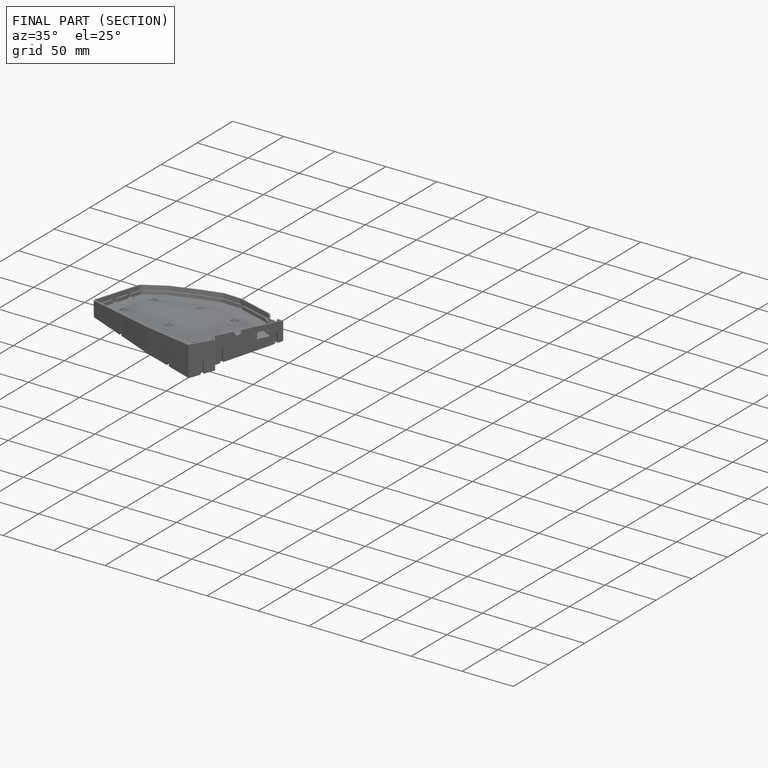
[diagram: finished part — half-section view (interior)]
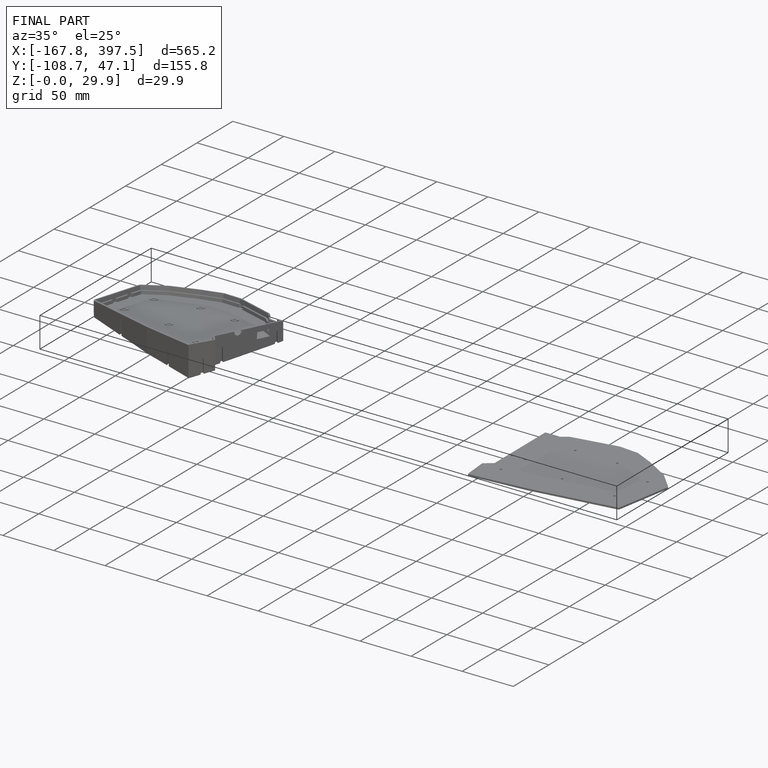
[diagram: finished part — iso view with bounding-box wireframe]
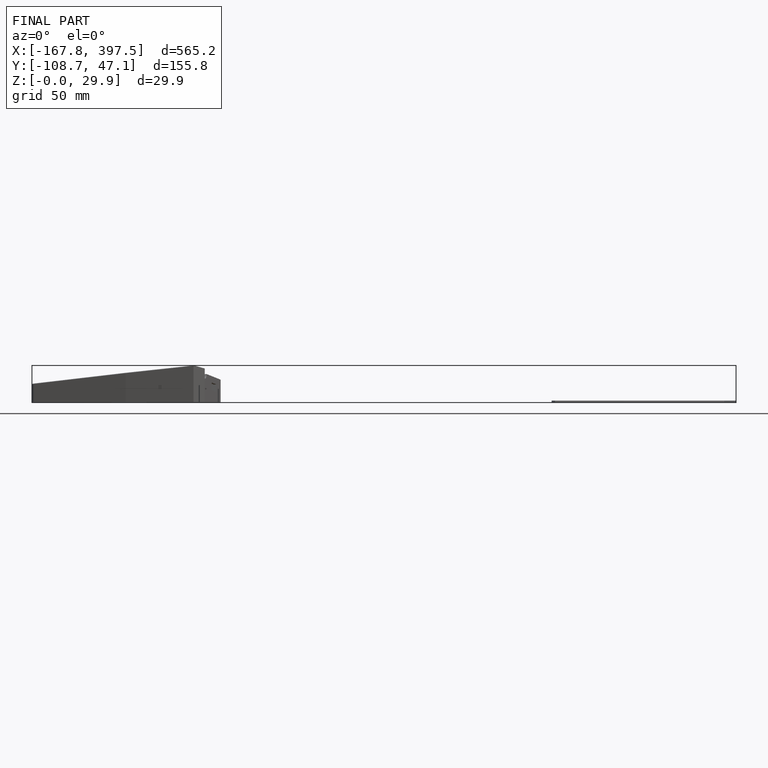
[diagram: finished part — front view with bounding-box wireframe]
